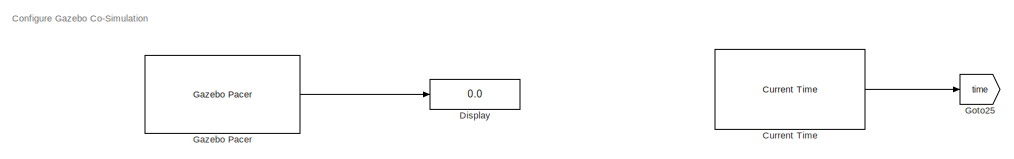
[diagram: root canvas - part 1/8, top center region]
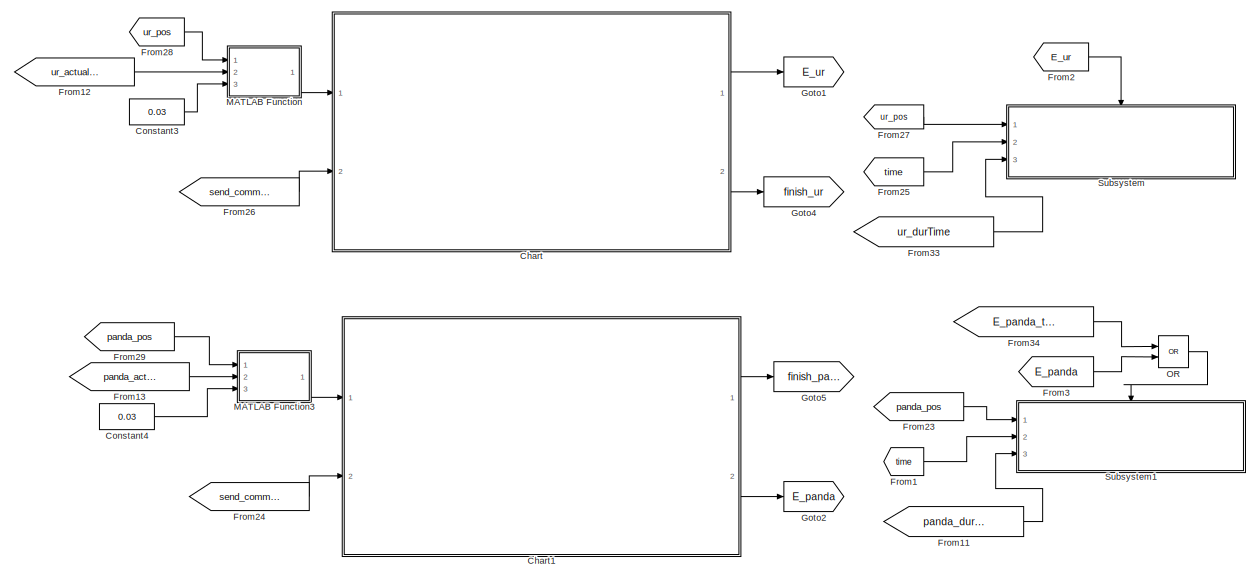
[diagram: root canvas - part 2/8, top right region]
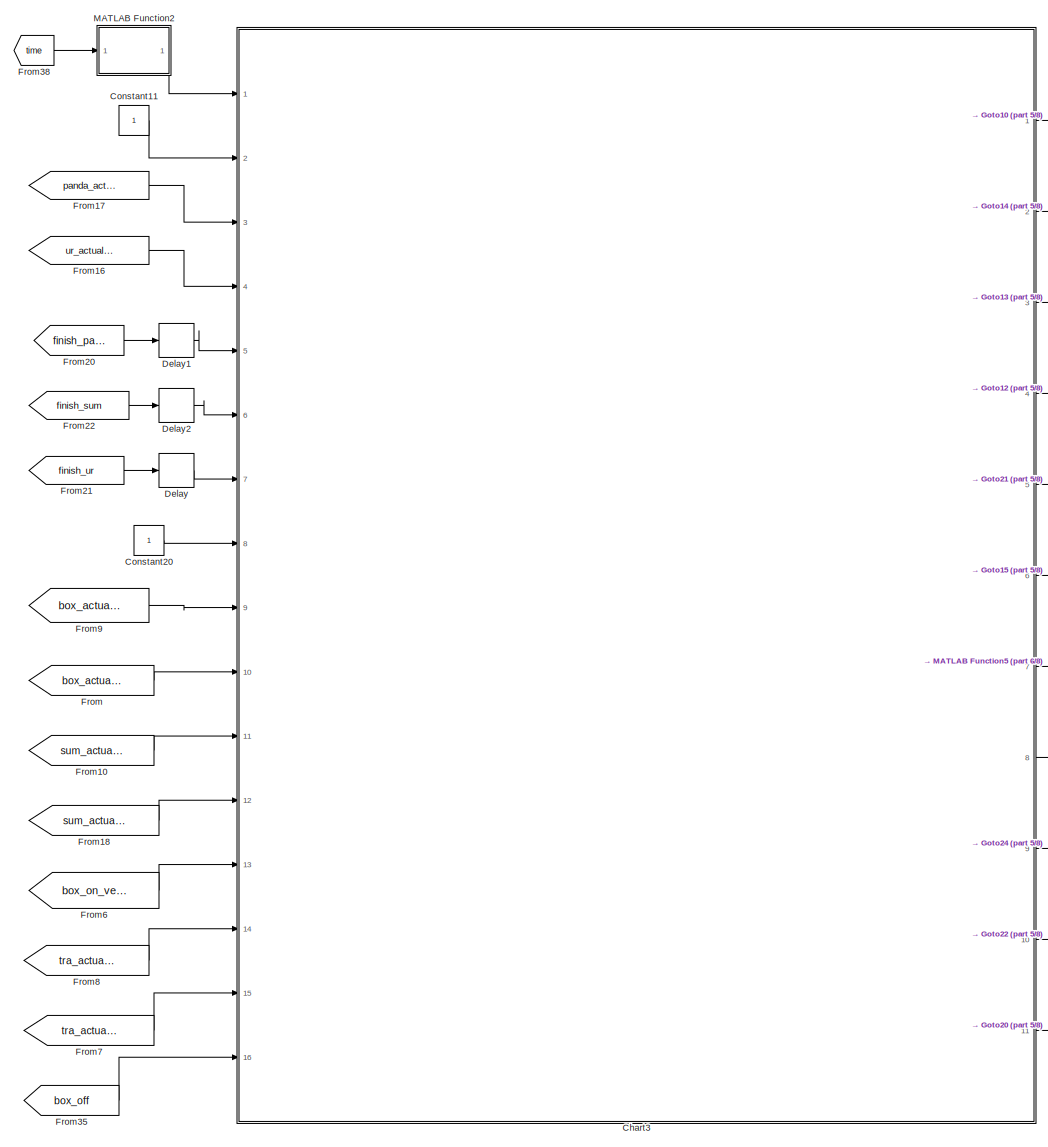
[diagram: root canvas - part 3/8, central region]
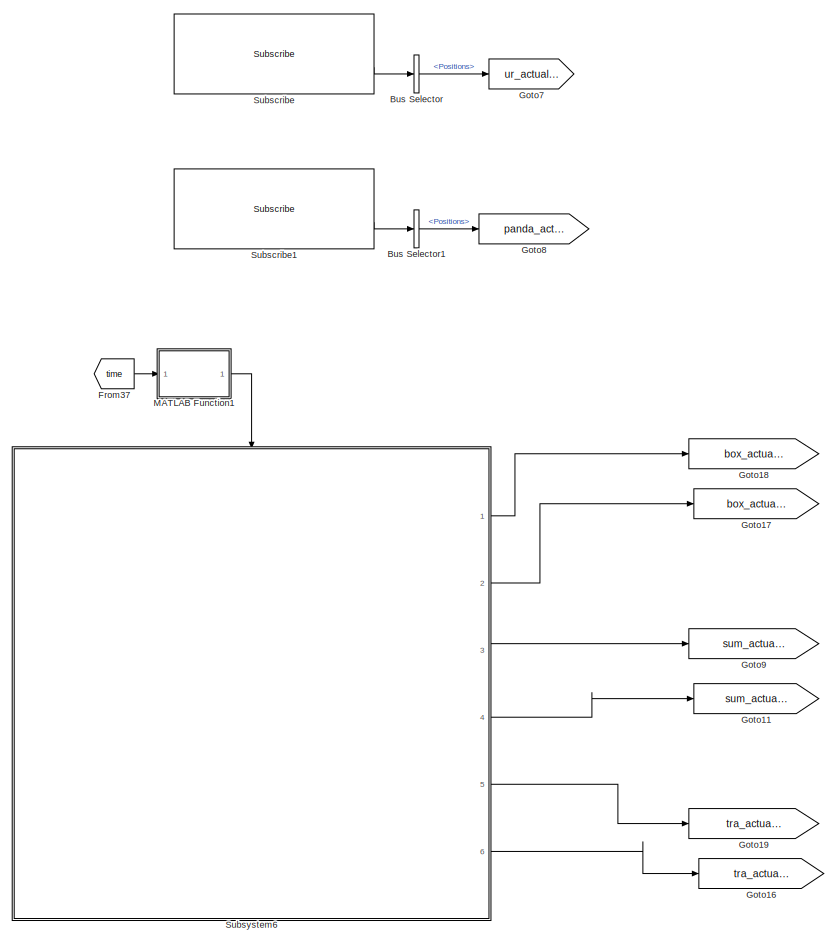
[diagram: root canvas - part 4/8, middle left region]
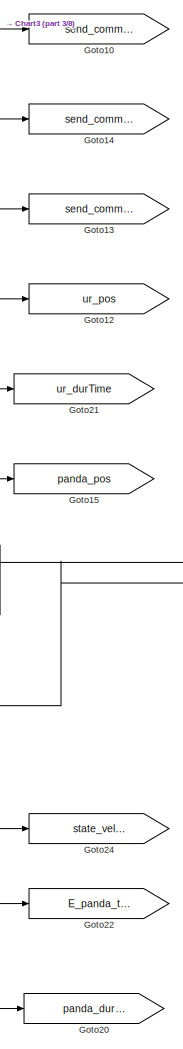
[diagram: root canvas - part 5/8, central region]
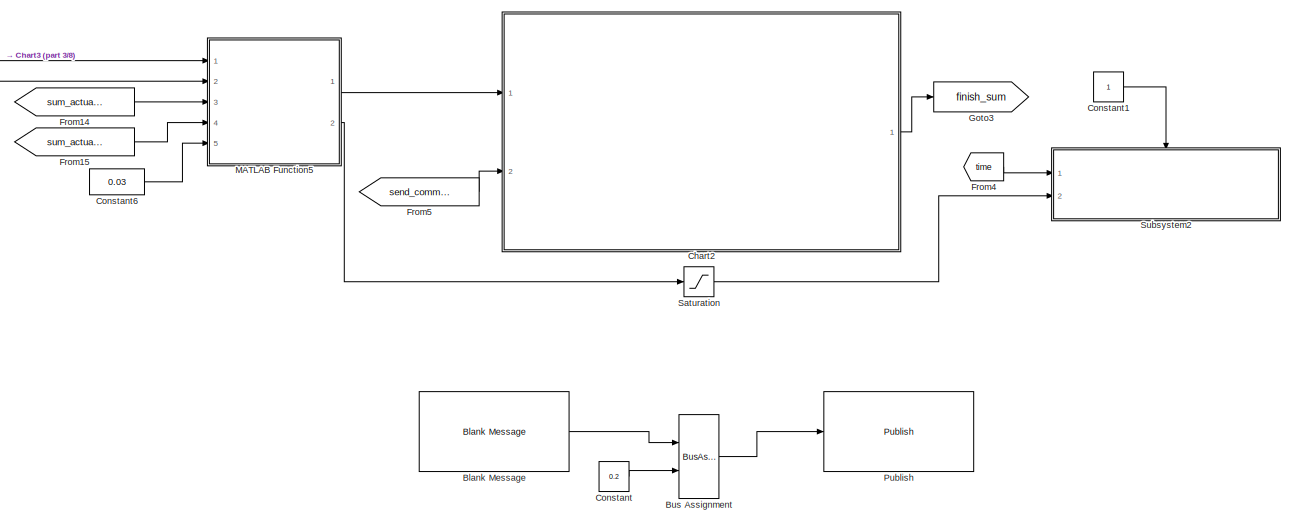
[diagram: root canvas - part 6/8, middle right region]
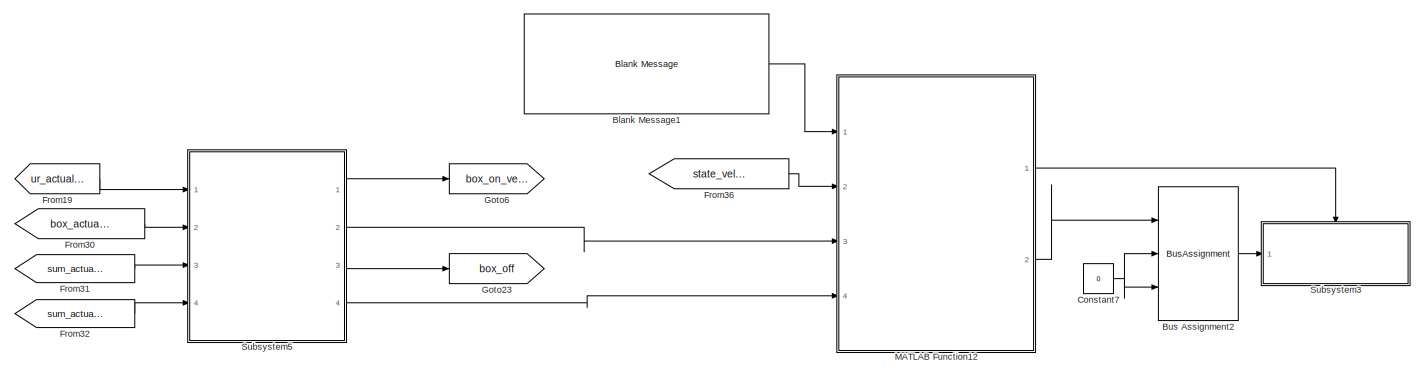
[diagram: root canvas - part 7/8, bottom right region]
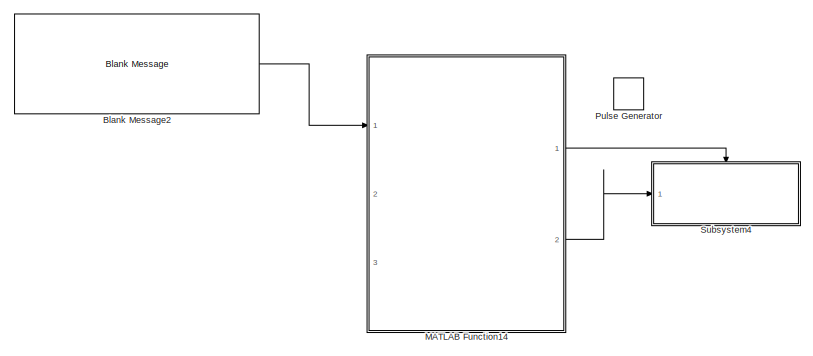
[diagram: root canvas - part 8/8, bottom left region]
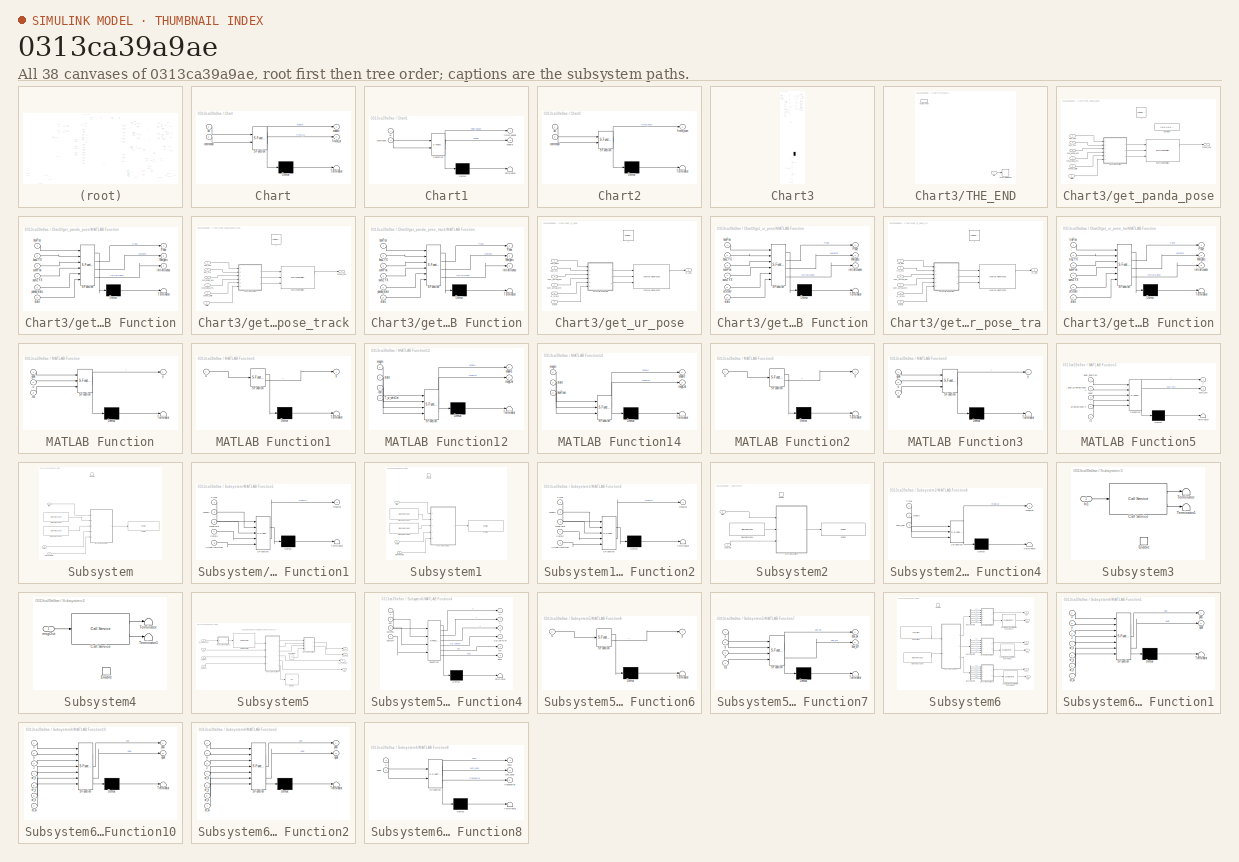
[diagram: thumbnail index - all 38 canvases of the model, root first then tree order]
MODEL slx_0313ca39a9ae
KIND model
CONFIG AbsTol = auto
CONFIG EnableMultiTasking = off
CONFIG FixedStep = 0.05
CONFIG MaxStep = auto
CONFIG MinStep = auto
CONFIG PreLoadFcn = rosinit();
CONFIG RelTol = 1e-3
CONFIG SampleTimeConstraint = Unconstrained
CONFIG SolverName = FixedStepAuto
CONFIG StartTime = 0.0
CONFIG StopTime = inf
WORKSPACE source: mxarray member
WORKSPACE SL_ROS_VariableLengthArrays_MaxSizes: object (value not decoded)
WORKSPACE pitch = -10
WORKSPACE restart = 0
BLOCK [Reference] Blank Message  REF=robotlib/Blank Message
  Ports = [0, 1]
  SourceBlock = robotlib/Blank Message
  SourceType = ROS Blank Message
BLOCK [Reference] Blank Message1  REF=robotlib/Blank Message
  Ports = [0, 1]
  SourceBlock = robotlib/Blank Message
  SourceType = ROS Blank Message
BLOCK [Reference] Blank Message2  REF=robotlib/Blank Message
  Commented = on
  Ports = [0, 1]
  SourceBlock = robotlib/Blank Message
  SourceType = ROS Blank Message
BLOCK [BusAssignment] Bus Assignment
  AssignedSignals = Data
  Ports = [2, 1]
BLOCK [BusAssignment] Bus Assignment2
  AssignedSignals = StartTime.Sec,StartTime.Nsec
  Ports = [3, 1]
BLOCK [BusSelector] Bus Selector
  OutputSignals = Actual.Positions
  Ports = [1, 1]
BLOCK [BusSelector] Bus Selector1
  OutputSignals = Actual.Positions
  Ports = [1, 1]
BLOCK [SubSystem] Chart
  ErrorFcn = Stateflow.Translate.translate
  PermitHierarchicalResolution = ExplicitOnly
  Ports = [2, 2]
  SFBlockType = Chart
  TreatAsAtomicUnit = on
BLOCK [Demux] Chart/ Demux 
  Outputs = 1
  Ports = [1, 1]
BLOCK [S-Function] Chart/ SFunction 
  EnableBusSupport = on
  FunctionName = sf_sfun
  PortCounts = [2 3]
  Ports = [2, 3]
  SFcnIsStateOwnerBlock = off
  SFunctionDeploymentMode = off
  Tag = Stateflow S-Function 2
BLOCK [Terminator] Chart/ Terminator 
BLOCK [Inport] Chart/command
  Port = 2
BLOCK [Outport] Chart/enable
BLOCK [Outport] Chart/finish_ur
  Port = 2
BLOCK [Inport] Chart/ok
BLOCK [SubSystem] Chart1
  ErrorFcn = Stateflow.Translate.translate
  PermitHierarchicalResolution = ExplicitOnly
  Ports = [2, 2]
  SFBlockType = Chart
  TreatAsAtomicUnit = on
BLOCK [Demux] Chart1/ Demux 
  Outputs = 1
  Ports = [1, 1]
BLOCK [S-Function] Chart1/ SFunction 
  EnableBusSupport = on
  FunctionName = sf_sfun
  PortCounts = [2 3]
  Ports = [2, 3]
  SFcnIsStateOwnerBlock = off
  SFunctionDeploymentMode = off
  Tag = Stateflow S-Function 5
BLOCK [Terminator] Chart1/ Terminator 
BLOCK [Inport] Chart1/command
  Port = 2
BLOCK [Outport] Chart1/enable
  Port = 2
BLOCK [Outport] Chart1/finish_panda
BLOCK [Inport] Chart1/ok
BLOCK [SubSystem] Chart2
  ErrorFcn = Stateflow.Translate.translate
  PermitHierarchicalResolution = ExplicitOnly
  Ports = [2, 1]
  SFBlockType = Chart
  TreatAsAtomicUnit = on
BLOCK [Demux] Chart2/ Demux 
  Outputs = 1
  Ports = [1, 1]
BLOCK [S-Function] Chart2/ SFunction 
  EnableBusSupport = on
  FunctionName = sf_sfun
  PortCounts = [2 2]
  Ports = [2, 2]
  SFcnIsStateOwnerBlock = off
  SFunctionDeploymentMode = off
  Tag = Stateflow S-Function 7
BLOCK [Terminator] Chart2/ Terminator 
BLOCK [Inport] Chart2/command
  Port = 2
BLOCK [Outport] Chart2/finish_sum
BLOCK [Inport] Chart2/ok
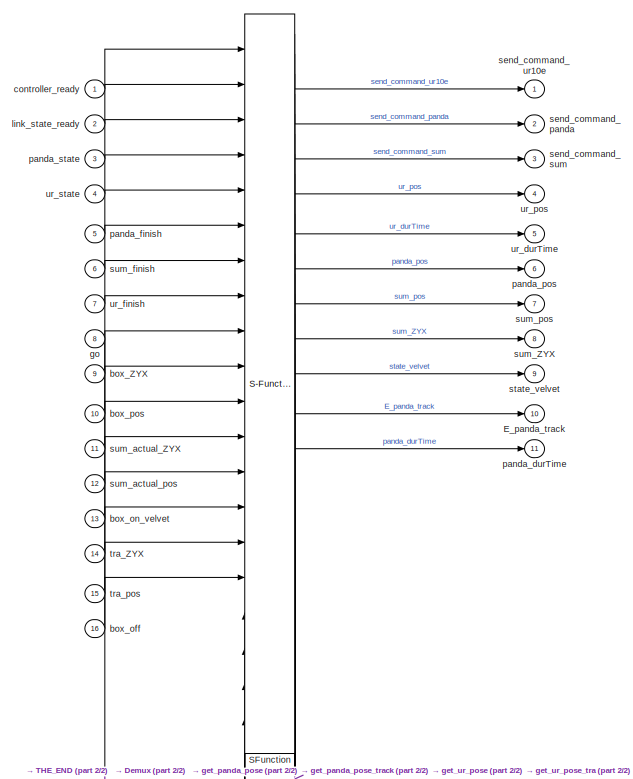
[diagram: Chart3 - part 1/2, full width, top band]
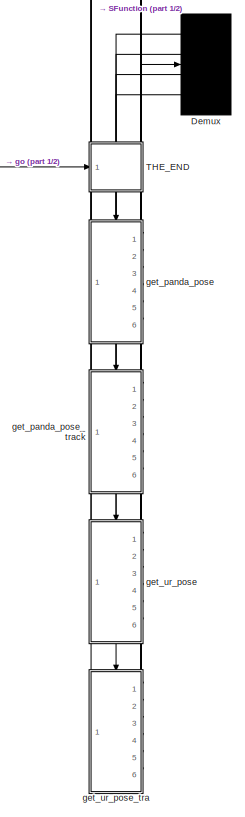
[diagram: Chart3 - part 2/2, bottom center region]
BLOCK [SubSystem] Chart3
  ErrorFcn = Stateflow.Translate.translate
  PermitHierarchicalResolution = ExplicitOnly
  Ports = [16, 11]
  SFBlockType = Chart
  TreatAsAtomicUnit = on
BLOCK [Demux] Chart3/ Demux 
  Ports = [1, 4]
BLOCK [S-Function] Chart3/ SFunction 
  EnableBusSupport = on
  FunctionName = sf_sfun
  PortCounts = [20 36]
  Ports = [20, 36]
  SFcnIsStateOwnerBlock = off
  SFunctionDeploymentMode = off
  Tag = Stateflow S-Function 14
BLOCK [Outport] Chart3/E_panda_track
  Port = 10
BLOCK [SubSystem] Chart3/THE_END
  Ports = [1, 0, 0, 0, 0, 0, 0, 1]
  PreDeleteFcn = Stateflow.SLINSF.SimulinkMan.removePreDeleteFcn
  UndoDeleteFcn = Stateflow.SLINSF.SimulinkMan.restorePreDeleteFcn
BLOCK [ActionPort] Chart3/THE_END/Action Port
  CopyFcn = Stateflow.SLINSF.SimulinkMan.removeBlockPreDeleteFcn
  PreDeleteFcn = Stateflow.SLINSF.SimulinkMan.unsafePredeleteFcn
BLOCK [Stop] Chart3/THE_END/Stop Simulation
BLOCK [Inport] Chart3/THE_END/go
BLOCK [Inport] Chart3/box_ZYX
  Port = 9
BLOCK [Inport] Chart3/box_off
  Port = 16
BLOCK [Inport] Chart3/box_on_velvet
  Port = 13
BLOCK [Inport] Chart3/box_pos
  Port = 10
BLOCK [Inport] Chart3/controller_ready
BLOCK [SubSystem] Chart3/get_panda_pose
  Ports = [6, 1, 0, 1]
  PreDeleteFcn = Stateflow.SLINSF.SimulinkMan.removePreDeleteFcn
  UndoDeleteFcn = Stateflow.SLINSF.SimulinkMan.restorePreDeleteFcn
BLOCK [Constant] Chart3/get_panda_pose/Constant
  Value = [0,0,1,0,0,0,0]'
BLOCK [Reference] Chart3/get_panda_pose/Inverse Kinematics  REF=robotmaniplib/Inverse Kinematics
  Ports = [3, 2]
  SourceBlock = robotmaniplib/Inverse Kinematics
  SourceType = Inverse Kinematics
BLOCK [SubSystem] Chart3/get_panda_pose/MATLAB Function
  ErrorFcn = Stateflow.Translate.translate
  PermitHierarchicalResolution = ExplicitOnly
  Ports = [6, 3]
  SFBlockType = MATLAB Function
  TreatAsAtomicUnit = on
BLOCK [Demux] Chart3/get_panda_pose/MATLAB Function/ Demux 
  Outputs = 1
  Ports = [1, 1]
BLOCK [S-Function] Chart3/get_panda_pose/MATLAB Function/ SFunction 
  EnableBusSupport = off
  FunctionName = sf_sfun
  PortCounts = [6 4]
  Ports = [6, 4]
  SFcnIsStateOwnerBlock = off
  SFunctionDeploymentMode = off
  Tag = Stateflow S-Function 13
BLOCK [Terminator] Chart3/get_panda_pose/MATLAB Function/ Terminator 
BLOCK [Outport] Chart3/get_panda_pose/MATLAB Function/Pose
BLOCK [Outport] Chart3/get_panda_pose/MATLAB Function/Weights
  Port = 2
BLOCK [Inport] Chart3/get_panda_pose/MATLAB Function/boxPos
BLOCK [Inport] Chart3/get_panda_pose/MATLAB Function/boxZYX
  Port = 2
BLOCK [Outport] Chart3/get_panda_pose/MATLAB Function/initialGuess
  Port = 3
BLOCK [Inport] Chart3/get_panda_pose/MATLAB Function/panda_state
  Port = 5
BLOCK [Inport] Chart3/get_panda_pose/MATLAB Function/state
  Port = 6
BLOCK [Inport] Chart3/get_panda_pose/MATLAB Function/sumPos
  Port = 3
BLOCK [Inport] Chart3/get_panda_pose/MATLAB Function/sumZYX
  Port = 4
BLOCK [Inport] Chart3/get_panda_pose/box_ZYX
  OutDataTypeStr = double
  Port = 2
  PortDimensions = [3,1]
  SignalType = real
  VarSizeSig = No
BLOCK [Inport] Chart3/get_panda_pose/box_pos
  OutDataTypeStr = double
  PortDimensions = [3,1]
  SignalType = real
  VarSizeSig = No
BLOCK [TriggerPort] Chart3/get_panda_pose/f
  CopyFcn = Stateflow.SLINSF.SimulinkMan.removeBlockPreDeleteFcn
  Ports = []
  PreDeleteFcn = Stateflow.SLINSF.SimulinkMan.unsafePredeleteFcn
  StatesWhenEnabling = held
  TriggerType = function-call
  VariantControl = (inherit)
BLOCK [Outport] Chart3/get_panda_pose/panda_pos
BLOCK [Inport] Chart3/get_panda_pose/panda_state
  OutDataTypeStr = double
  Port = 5
  PortDimensions = [7,1]
  SignalType = real
  VarSizeSig = No
BLOCK [Inport] Chart3/get_panda_pose/state
  OutDataTypeStr = double
  Port = 6
  PortDimensions = 1
  SignalType = real
  VarSizeSig = No
BLOCK [Inport] Chart3/get_panda_pose/sum_actual_ZYX
  OutDataTypeStr = double
  Port = 4
  PortDimensions = [3,1]
  SignalType = real
  VarSizeSig = No
BLOCK [Inport] Chart3/get_panda_pose/sum_actual_pos
  OutDataTypeStr = double
  Port = 3
  PortDimensions = [3,1]
  SignalType = real
  VarSizeSig = No
BLOCK [SubSystem] Chart3/get_panda_pose_track
  Ports = [6, 1, 0, 1]
  PreDeleteFcn = Stateflow.SLINSF.SimulinkMan.removePreDeleteFcn
  UndoDeleteFcn = Stateflow.SLINSF.SimulinkMan.restorePreDeleteFcn
BLOCK [Reference] Chart3/get_panda_pose_track/Inverse Kinematics  REF=robotmaniplib/Inverse Kinematics
  Ports = [3, 2]
  SourceBlock = robotmaniplib/Inverse Kinematics
  SourceType = Inverse Kinematics
BLOCK [SubSystem] Chart3/get_panda_pose_track/MATLAB Function
  ErrorFcn = Stateflow.Translate.translate
  PermitHierarchicalResolution = ExplicitOnly
  Ports = [6, 3]
  SFBlockType = MATLAB Function
  TreatAsAtomicUnit = on
BLOCK [Demux] Chart3/get_panda_pose_track/MATLAB Function/ Demux 
  Outputs = 1
  Ports = [1, 1]
BLOCK [S-Function] Chart3/get_panda_pose_track/MATLAB Function/ SFunction 
  EnableBusSupport = off
  FunctionName = sf_sfun
  PortCounts = [6 4]
  Ports = [6, 4]
  SFcnIsStateOwnerBlock = off
  SFunctionDeploymentMode = off
  Tag = Stateflow S-Function 21
BLOCK [Terminator] Chart3/get_panda_pose_track/MATLAB Function/ Terminator 
BLOCK [Outport] Chart3/get_panda_pose_track/MATLAB Function/Pose
BLOCK [Outport] Chart3/get_panda_pose_track/MATLAB Function/Weights
  Port = 2
BLOCK [Inport] Chart3/get_panda_pose_track/MATLAB Function/boxPos
BLOCK [Inport] Chart3/get_panda_pose_track/MATLAB Function/boxZYX
  Port = 2
BLOCK [Outport] Chart3/get_panda_pose_track/MATLAB Function/initialGuess
  Port = 3
BLOCK [Inport] Chart3/get_panda_pose_track/MATLAB Function/panda_state
  Port = 5
BLOCK [Inport] Chart3/get_panda_pose_track/MATLAB Function/state
  Port = 6
BLOCK [Inport] Chart3/get_panda_pose_track/MATLAB Function/sumPos
  Port = 3
BLOCK [Inport] Chart3/get_panda_pose_track/MATLAB Function/sumZYX
  Port = 4
BLOCK [Inport] Chart3/get_panda_pose_track/box_ZYX
  OutDataTypeStr = double
  Port = 2
  PortDimensions = [3,1]
  SignalType = real
  VarSizeSig = No
BLOCK [Inport] Chart3/get_panda_pose_track/box_pos
  OutDataTypeStr = double
  PortDimensions = [3,1]
  SignalType = real
  VarSizeSig = No
BLOCK [TriggerPort] Chart3/get_panda_pose_track/f
  CopyFcn = Stateflow.SLINSF.SimulinkMan.removeBlockPreDeleteFcn
  Ports = []
  PreDeleteFcn = Stateflow.SLINSF.SimulinkMan.unsafePredeleteFcn
  StatesWhenEnabling = held
  TriggerType = function-call
  VariantControl = (inherit)
BLOCK [Outport] Chart3/get_panda_pose_track/panda_pos
BLOCK [Inport] Chart3/get_panda_pose_track/panda_state
  OutDataTypeStr = double
  Port = 5
  PortDimensions = [7,1]
  SignalType = real
  VarSizeSig = No
BLOCK [Inport] Chart3/get_panda_pose_track/state
  OutDataTypeStr = double
  Port = 6
  PortDimensions = 1
  SignalType = real
  VarSizeSig = No
BLOCK [Inport] Chart3/get_panda_pose_track/sum_actual_ZYX
  OutDataTypeStr = double
  Port = 4
  PortDimensions = [3,1]
  SignalType = real
  VarSizeSig = No
BLOCK [Inport] Chart3/get_panda_pose_track/sum_actual_pos
  OutDataTypeStr = double
  Port = 3
  PortDimensions = [3,1]
  SignalType = real
  VarSizeSig = No
BLOCK [SubSystem] Chart3/get_ur_pose
  Ports = [6, 1, 0, 1]
  PreDeleteFcn = Stateflow.SLINSF.SimulinkMan.removePreDeleteFcn
  UndoDeleteFcn = Stateflow.SLINSF.SimulinkMan.restorePreDeleteFcn
BLOCK [Reference] Chart3/get_ur_pose/Inverse Kinematics  REF=robotmaniplib/Inverse Kinematics
  Ports = [3, 2]
  SourceBlock = robotmaniplib/Inverse Kinematics
  SourceType = Inverse Kinematics
BLOCK [SubSystem] Chart3/get_ur_pose/MATLAB Function
  ErrorFcn = Stateflow.Translate.translate
  PermitHierarchicalResolution = ExplicitOnly
  Ports = [6, 3]
  SFBlockType = MATLAB Function
  TreatAsAtomicUnit = on
BLOCK [Demux] Chart3/get_ur_pose/MATLAB Function/ Demux 
  Outputs = 1
  Ports = [1, 1]
BLOCK [S-Function] Chart3/get_ur_pose/MATLAB Function/ SFunction 
  EnableBusSupport = off
  FunctionName = sf_sfun
  PortCounts = [6 4]
  Ports = [6, 4]
  SFcnIsStateOwnerBlock = off
  SFunctionDeploymentMode = off
  Tag = Stateflow S-Function 10
BLOCK [Terminator] Chart3/get_ur_pose/MATLAB Function/ Terminator 
BLOCK [Outport] Chart3/get_ur_pose/MATLAB Function/Pose
BLOCK [Outport] Chart3/get_ur_pose/MATLAB Function/Weights
  Port = 2
BLOCK [Inport] Chart3/get_ur_pose/MATLAB Function/boxPos
BLOCK [Inport] Chart3/get_ur_pose/MATLAB Function/boxZYX
  Port = 2
BLOCK [Outport] Chart3/get_ur_pose/MATLAB Function/initialGuess
  Port = 3
BLOCK [Inport] Chart3/get_ur_pose/MATLAB Function/state
  Port = 6
BLOCK [Inport] Chart3/get_ur_pose/MATLAB Function/sumPos
  Port = 3
BLOCK [Inport] Chart3/get_ur_pose/MATLAB Function/sumZYX
  Port = 4
BLOCK [Inport] Chart3/get_ur_pose/MATLAB Function/urState
  Port = 5
BLOCK [Inport] Chart3/get_ur_pose/box_ZYX
  OutDataTypeStr = double
  Port = 2
  PortDimensions = [3,1]
  SignalType = real
  VarSizeSig = No
BLOCK [Inport] Chart3/get_ur_pose/box_pose
  OutDataTypeStr = double
  PortDimensions = [3,1]
  SignalType = real
  VarSizeSig = No
BLOCK [TriggerPort] Chart3/get_ur_pose/f
  CopyFcn = Stateflow.SLINSF.SimulinkMan.removeBlockPreDeleteFcn
  Ports = []
  PreDeleteFcn = Stateflow.SLINSF.SimulinkMan.unsafePredeleteFcn
  StatesWhenEnabling = held
  TriggerType = function-call
  VariantControl = (inherit)
BLOCK [Inport] Chart3/get_ur_pose/state
  OutDataTypeStr = double
  Port = 6
  PortDimensions = 1
  SignalType = real
  VarSizeSig = No
BLOCK [Inport] Chart3/get_ur_pose/sum_actual_ZYX
  OutDataTypeStr = double
  Port = 4
  PortDimensions = [3,1]
  SignalType = real
  VarSizeSig = No
BLOCK [Inport] Chart3/get_ur_pose/sum_actual_pos
  OutDataTypeStr = double
  Port = 3
  PortDimensions = [3,1]
  SignalType = real
  VarSizeSig = No
BLOCK [Outport] Chart3/get_ur_pose/ur_pos
BLOCK [Inport] Chart3/get_ur_pose/ur_state
  OutDataTypeStr = double
  Port = 5
  PortDimensions = [7,1]
  SignalType = real
  VarSizeSig = No
BLOCK [SubSystem] Chart3/get_ur_pose_tra
  Ports = [6, 1, 0, 1]
  PreDeleteFcn = Stateflow.SLINSF.SimulinkMan.removePreDeleteFcn
  UndoDeleteFcn = Stateflow.SLINSF.SimulinkMan.restorePreDeleteFcn
BLOCK [Reference] Chart3/get_ur_pose_tra/Inverse Kinematics  REF=robotmaniplib/Inverse Kinematics
  Ports = [3, 2]
  SourceBlock = robotmaniplib/Inverse Kinematics
  SourceType = Inverse Kinematics
BLOCK [SubSystem] Chart3/get_ur_pose_tra/MATLAB Function
  ErrorFcn = Stateflow.Translate.translate
  PermitHierarchicalResolution = ExplicitOnly
  Ports = [6, 3]
  SFBlockType = MATLAB Function
  TreatAsAtomicUnit = on
BLOCK [Demux] Chart3/get_ur_pose_tra/MATLAB Function/ Demux 
  Outputs = 1
  Ports = [1, 1]
BLOCK [S-Function] Chart3/get_ur_pose_tra/MATLAB Function/ SFunction 
  EnableBusSupport = off
  FunctionName = sf_sfun
  PortCounts = [6 4]
  Ports = [6, 4]
  SFcnIsStateOwnerBlock = off
  SFunctionDeploymentMode = off
  Tag = Stateflow S-Function 17
BLOCK [Terminator] Chart3/get_ur_pose_tra/MATLAB Function/ Terminator 
BLOCK [Outport] Chart3/get_ur_pose_tra/MATLAB Function/Pose
BLOCK [Outport] Chart3/get_ur_pose_tra/MATLAB Function/Weights
  Port = 2
BLOCK [Outport] Chart3/get_ur_pose_tra/MATLAB Function/initialGuess
  Port = 3
BLOCK [Inport] Chart3/get_ur_pose_tra/MATLAB Function/state
  Port = 6
BLOCK [Inport] Chart3/get_ur_pose_tra/MATLAB Function/sumPos
  Port = 3
BLOCK [Inport] Chart3/get_ur_pose_tra/MATLAB Function/sumZYX
  Port = 4
BLOCK [Inport] Chart3/get_ur_pose_tra/MATLAB Function/traPos
BLOCK [Inport] Chart3/get_ur_pose_tra/MATLAB Function/traZYX
  Port = 2
BLOCK [Inport] Chart3/get_ur_pose_tra/MATLAB Function/urState
  Port = 5
BLOCK [TriggerPort] Chart3/get_ur_pose_tra/f
  CopyFcn = Stateflow.SLINSF.SimulinkMan.removeBlockPreDeleteFcn
  Ports = []
  PreDeleteFcn = Stateflow.SLINSF.SimulinkMan.unsafePredeleteFcn
  StatesWhenEnabling = held
  TriggerType = function-call
  VariantControl = (inherit)
BLOCK [Inport] Chart3/get_ur_pose_tra/state
  OutDataTypeStr = double
  Port = 6
  PortDimensions = 1
  SignalType = real
  VarSizeSig = No
BLOCK [Inport] Chart3/get_ur_pose_tra/sum_actual_ZYX
  OutDataTypeStr = double
  Port = 4
  PortDimensions = [3,1]
  SignalType = real
  VarSizeSig = No
BLOCK [Inport] Chart3/get_ur_pose_tra/sum_actual_pos
  OutDataTypeStr = double
  Port = 3
  PortDimensions = [3,1]
  SignalType = real
  VarSizeSig = No
BLOCK [Inport] Chart3/get_ur_pose_tra/tra_ZYX
  OutDataTypeStr = double
  Port = 2
  PortDimensions = [3,1]
  SignalType = real
  VarSizeSig = No
BLOCK [Inport] Chart3/get_ur_pose_tra/tra_pos
  OutDataTypeStr = double
  PortDimensions = [3,1]
  SignalType = real
  VarSizeSig = No
BLOCK [Outport] Chart3/get_ur_pose_tra/ur_pos
BLOCK [Inport] Chart3/get_ur_pose_tra/ur_state
  OutDataTypeStr = double
  Port = 5
  PortDimensions = [7,1]
  SignalType = real
  VarSizeSig = No
BLOCK [Inport] Chart3/go
  Port = 8
BLOCK [Inport] Chart3/link_state_ready
  Port = 2
BLOCK [Outport] Chart3/panda_durTime
  Port = 11
BLOCK [Inport] Chart3/panda_finish
  Port = 5
BLOCK [Outport] Chart3/panda_pos
  Port = 6
BLOCK [Inport] Chart3/panda_state
  Port = 3
BLOCK [Outport] Chart3/send_command_panda
  Port = 2
BLOCK [Outport] Chart3/send_command_sum
  Port = 3
BLOCK [Outport] Chart3/send_command_ur10e
BLOCK [Outport] Chart3/state_velvet
  Port = 9
BLOCK [Outport] Chart3/sum_ZYX
  Port = 8
BLOCK [Inport] Chart3/sum_actual_ZYX
  Port = 11
BLOCK [Inport] Chart3/sum_actual_pos
  Port = 12
BLOCK [Inport] Chart3/sum_finish
  Port = 6
BLOCK [Outport] Chart3/sum_pos
  Port = 7
BLOCK [Inport] Chart3/tra_ZYX
  Port = 14
BLOCK [Inport] Chart3/tra_pos
  Port = 15
BLOCK [Outport] Chart3/ur_durTime
  Port = 5
BLOCK [Inport] Chart3/ur_finish
  Port = 7
BLOCK [Outport] Chart3/ur_pos
  Port = 4
BLOCK [Inport] Chart3/ur_state
  Port = 4
BLOCK [Constant] Constant
  Value = 0.2
BLOCK [Constant] Constant1
BLOCK [Constant] Constant11
BLOCK [Constant] Constant20
BLOCK [Constant] Constant3
  Value = 0.03
BLOCK [Constant] Constant4
  Value = 0.03
BLOCK [Constant] Constant6
  Value = 0.03
BLOCK [Constant] Constant7
  Value = 0
BLOCK [Reference] Current Time  REF=robotlib/Current Time
  Ports = [0, 1]
  SourceBlock = robotlib/Current Time
  SourceType = ros.slros.internal.block.CurrentTime
BLOCK [Delay] Delay
  DelayLength = 1
  InitialCondition = 0
  InputPortMap = u0
  Ports = [1, 1]
BLOCK [Delay] Delay1
  DelayLength = 1
  InitialCondition = 0
  InputPortMap = u0
  Ports = [1, 1]
BLOCK [Delay] Delay2
  DelayLength = 1
  InitialCondition = 0
  InputPortMap = u0
  Ports = [1, 1]
BLOCK [Display] Display
  Decimation = 1
  Ports = [1]
BLOCK [From] From
  GotoTag = box_actual_pos
BLOCK [From] From1
  GotoTag = time
  TagVisibility = global
BLOCK [From] From10
  GotoTag = sum_actual_ZYX
BLOCK [From] From11
  GotoTag = panda_durTime
  TagVisibility = global
BLOCK [From] From12
  GotoTag = ur_actual_pos
BLOCK [From] From13
  GotoTag = panda_actual_pos
BLOCK [From] From14
  GotoTag = sum_actual_pos
BLOCK [From] From15
  GotoTag = sum_actual_ZYX
BLOCK [From] From16
  GotoTag = ur_actual_pos
BLOCK [From] From17
  GotoTag = panda_actual_pos
BLOCK [From] From18
  GotoTag = sum_actual_pos
BLOCK [From] From19
  GotoTag = ur_actual_pos
BLOCK [From] From2
  GotoTag = E_ur
BLOCK [From] From20
  GotoTag = finish_panda
BLOCK [From] From21
  GotoTag = finish_ur
BLOCK [From] From22
  GotoTag = finish_sum
BLOCK [From] From23
  GotoTag = panda_pos
  TagVisibility = global
BLOCK [From] From24
  GotoTag = send_command_panda
  TagVisibility = global
BLOCK [From] From25
  GotoTag = time
  TagVisibility = global
BLOCK [From] From26
  GotoTag = send_command_ur10e
  TagVisibility = global
BLOCK [From] From27
  GotoTag = ur_pos
  TagVisibility = global
BLOCK [From] From28
  GotoTag = ur_pos
  TagVisibility = global
BLOCK [From] From29
  GotoTag = panda_pos
  TagVisibility = global
BLOCK [From] From3
  GotoTag = E_panda
BLOCK [From] From30
  GotoTag = box_actual_pos
BLOCK [From] From31
  GotoTag = sum_actual_pos
BLOCK [From] From32
  GotoTag = sum_actual_ZYX
BLOCK [From] From33
  GotoTag = ur_durTime
  TagVisibility = global
BLOCK [From] From34
  GotoTag = E_panda_track
  TagVisibility = global
BLOCK [From] From35
  GotoTag = box_off
BLOCK [From] From36
  GotoTag = state_velvet
  TagVisibility = global
BLOCK [From] From37
  GotoTag = time
  TagVisibility = global
BLOCK [From] From38
  GotoTag = time
  TagVisibility = global
BLOCK [From] From4
  GotoTag = time
  TagVisibility = global
BLOCK [From] From5
  GotoTag = send_command_sum
  TagVisibility = global
BLOCK [From] From6
  GotoTag = box_on_velvet
BLOCK [From] From7
  GotoTag = tra_actual_pos
BLOCK [From] From8
  GotoTag = tra_actual_ZYX
BLOCK [From] From9
  GotoTag = box_actual_ZYX
BLOCK [Reference] Gazebo Pacer  REF=robotgazebolib/Gazebo Pacer
  Ports = [0, 1]
  SourceBlock = robotgazebolib/Gazebo Pacer
  SourceType = Gazebo Pacer
BLOCK [Goto] Goto1
  GotoTag = E_ur
BLOCK [Goto] Goto10
  GotoTag = send_command_ur10e
  TagVisibility = global
BLOCK [Goto] Goto11
  GotoTag = sum_actual_ZYX
BLOCK [Goto] Goto12
  GotoTag = ur_pos
  TagVisibility = global
BLOCK [Goto] Goto13
  GotoTag = send_command_sum
  TagVisibility = global
BLOCK [Goto] Goto14
  GotoTag = send_command_panda
  TagVisibility = global
BLOCK [Goto] Goto15
  GotoTag = panda_pos
  TagVisibility = global
BLOCK [Goto] Goto16
  GotoTag = tra_actual_ZYX
BLOCK [Goto] Goto17
  GotoTag = box_actual_ZYX
BLOCK [Goto] Goto18
  GotoTag = box_actual_pos
BLOCK [Goto] Goto19
  GotoTag = tra_actual_pos
BLOCK [Goto] Goto2
  GotoTag = E_panda
BLOCK [Goto] Goto20
  GotoTag = panda_durTime
  TagVisibility = global
BLOCK [Goto] Goto21
  GotoTag = ur_durTime
  TagVisibility = global
BLOCK [Goto] Goto22
  GotoTag = E_panda_track
  TagVisibility = global
BLOCK [Goto] Goto23
  GotoTag = box_off
BLOCK [Goto] Goto24
  GotoTag = state_velvet
  TagVisibility = global
BLOCK [Goto] Goto25
  GotoTag = time
  TagVisibility = global
BLOCK [Goto] Goto3
  GotoTag = finish_sum
BLOCK [Goto] Goto4
  GotoTag = finish_ur
BLOCK [Goto] Goto5
  GotoTag = finish_panda
BLOCK [Goto] Goto6
  GotoTag = box_on_velvet
BLOCK [Goto] Goto7
  GotoTag = ur_actual_pos
BLOCK [Goto] Goto8
  GotoTag = panda_actual_pos
BLOCK [Goto] Goto9
  GotoTag = sum_actual_pos
BLOCK [SubSystem] MATLAB Function
  ErrorFcn = Stateflow.Translate.translate
  PermitHierarchicalResolution = ExplicitOnly
  Ports = [3, 1]
  SFBlockType = MATLAB Function
  TreatAsAtomicUnit = on
BLOCK [Demux] MATLAB Function/ Demux 
  Outputs = 1
  Ports = [1, 1]
BLOCK [S-Function] MATLAB Function/ SFunction 
  EnableBusSupport = on
  FunctionName = sf_sfun
  PortCounts = [3 2]
  Ports = [3, 2]
  SFcnIsStateOwnerBlock = off
  SFunctionDeploymentMode = off
  Tag = Stateflow S-Function 4
BLOCK [Terminator] MATLAB Function/ Terminator 
BLOCK [Inport] MATLAB Function/goal
BLOCK [Inport] MATLAB Function/tol
  Port = 3
BLOCK [Inport] MATLAB Function/u
  Port = 2
BLOCK [Outport] MATLAB Function/y
BLOCK [SubSystem] MATLAB Function1
  ErrorFcn = Stateflow.Translate.translate
  PermitHierarchicalResolution = ExplicitOnly
  Ports = [1, 1]
  SFBlockType = MATLAB Function
  TreatAsAtomicUnit = on
BLOCK [Demux] MATLAB Function1/ Demux 
  Outputs = 1
  Ports = [1, 1]
BLOCK [S-Function] MATLAB Function1/ SFunction 
  EnableBusSupport = on
  FunctionName = sf_sfun
  PortCounts = [1 2]
  Ports = [1, 2]
  SFcnIsStateOwnerBlock = off
  SFunctionDeploymentMode = off
  Tag = Stateflow S-Function 18
BLOCK [Terminator] MATLAB Function1/ Terminator 
BLOCK [Inport] MATLAB Function1/u
BLOCK [Outport] MATLAB Function1/y
BLOCK [SubSystem] MATLAB Function12
  ErrorFcn = Stateflow.Translate.translate
  PermitHierarchicalResolution = ExplicitOnly
  Ports = [4, 2]
  SFBlockType = MATLAB Function
  TreatAsAtomicUnit = on
BLOCK [Demux] MATLAB Function12/ Demux 
  Outputs = 1
  Ports = [1, 1]
BLOCK [S-Function] MATLAB Function12/ SFunction 
  EnableBusSupport = on
  FunctionName = sf_sfun
  PortCounts = [4 3]
  Ports = [4, 3]
  SFcnIsStateOwnerBlock = off
  SFunctionDeploymentMode = off
  Tag = Stateflow S-Function 22
BLOCK [Terminator] MATLAB Function12/ Terminator 
BLOCK [Inport] MATLAB Function12/T_ur_velvCnt
  Port = 4
BLOCK [Inport] MATLAB Function12/coll
  Port = 3
BLOCK [Outport] MATLAB Function12/enable
BLOCK [Inport] MATLAB Function12/msgIn
BLOCK [Outport] MATLAB Function12/msgOut
  Port = 2
BLOCK [Inport] MATLAB Function12/state
  Port = 2
BLOCK [SubSystem] MATLAB Function14
  Commented = on
  ErrorFcn = Stateflow.Translate.translate
  PermitHierarchicalResolution = ExplicitOnly
  Ports = [3, 2]
  SFBlockType = MATLAB Function
  TreatAsAtomicUnit = on
BLOCK [Demux] MATLAB Function14/ Demux 
  Outputs = 1
  Ports = [1, 1]
BLOCK [S-Function] MATLAB Function14/ SFunction 
  EnableBusSupport = on
  FunctionName = sf_sfun
  PortCounts = [3 3]
  Ports = [3, 3]
  SFcnIsStateOwnerBlock = off
  SFunctionDeploymentMode = off
  Tag = Stateflow S-Function 19
BLOCK [Terminator] MATLAB Function14/ Terminator 
BLOCK [Inport] MATLAB Function14/boxPose
  Port = 3
BLOCK [Outport] MATLAB Function14/enable
BLOCK [Inport] MATLAB Function14/msgIn
BLOCK [Outport] MATLAB Function14/msgOut
  Port = 2
BLOCK [Inport] MATLAB Function14/state
  Port = 2
BLOCK [SubSystem] MATLAB Function2
  ErrorFcn = Stateflow.Translate.translate
  PermitHierarchicalResolution = ExplicitOnly
  Ports = [1, 1]
  SFBlockType = MATLAB Function
  TreatAsAtomicUnit = on
BLOCK [Demux] MATLAB Function2/ Demux 
  Outputs = 1
  Ports = [1, 1]
BLOCK [S-Function] MATLAB Function2/ SFunction 
  EnableBusSupport = on
  FunctionName = sf_sfun
  PortCounts = [1 2]
  Ports = [1, 2]
  SFcnIsStateOwnerBlock = off
  SFunctionDeploymentMode = off
  Tag = Stateflow S-Function 20
BLOCK [Terminator] MATLAB Function2/ Terminator 
BLOCK [Inport] MATLAB Function2/u
BLOCK [Outport] MATLAB Function2/y
BLOCK [SubSystem] MATLAB Function3
  ErrorFcn = Stateflow.Translate.translate
  PermitHierarchicalResolution = ExplicitOnly
  Ports = [3, 1]
  SFBlockType = MATLAB Function
  TreatAsAtomicUnit = on
BLOCK [Demux] MATLAB Function3/ Demux 
  Outputs = 1
  Ports = [1, 1]
BLOCK [S-Function] MATLAB Function3/ SFunction 
  EnableBusSupport = on
  FunctionName = sf_sfun
  PortCounts = [3 2]
  Ports = [3, 2]
  SFcnIsStateOwnerBlock = off
  SFunctionDeploymentMode = off
  Tag = Stateflow S-Function 6
BLOCK [Terminator] MATLAB Function3/ Terminator 
BLOCK [Inport] MATLAB Function3/goal
BLOCK [Inport] MATLAB Function3/tol
  Port = 3
BLOCK [Inport] MATLAB Function3/u
  Port = 2
BLOCK [Outport] MATLAB Function3/y
BLOCK [SubSystem] MATLAB Function5
  ErrorFcn = Stateflow.Translate.translate
  PermitHierarchicalResolution = ExplicitOnly
  Ports = [5, 2]
  SFBlockType = MATLAB Function
  TreatAsAtomicUnit = on
BLOCK [Demux] MATLAB Function5/ Demux 
  Outputs = 1
  Ports = [1, 1]
BLOCK [S-Function] MATLAB Function5/ SFunction 
  EnableBusSupport = on
  FunctionName = sf_sfun
  PortCounts = [5 3]
  Ports = [5, 3]
  SFcnIsStateOwnerBlock = off
  SFunctionDeploymentMode = off
  Tag = Stateflow S-Function 9
BLOCK [Terminator] MATLAB Function5/ Terminator 
BLOCK [Inport] MATLAB Function5/goal_orientationZYX
  Port = 2
BLOCK [Inport] MATLAB Function5/goal_position
BLOCK [Inport] MATLAB Function5/orientationZYX
  Port = 4
BLOCK [Inport] MATLAB Function5/pose
  Port = 3
BLOCK [Outport] MATLAB Function5/sum_cntr
  Port = 2
BLOCK [Inport] MATLAB Function5/tol
  Port = 5
BLOCK [Outport] MATLAB Function5/y
BLOCK [Logic] OR
  AllPortsSameDT = off
  IconShape = distinctive
  Operator = OR
  OutDataTypeStr = boolean
  Ports = [2, 1]
BLOCK [Reference] Publish  REF=robotlib/Publish
  Ports = [1]
  SourceBlock = robotlib/Publish
  SourceType = ROS Publish
BLOCK [DiscretePulseGenerator] Pulse Generator
  Commented = on
  Period = 10
  Ports = [0, 1]
  PulseType = Time based
  PulseWidth = 0.1
BLOCK [Saturate] Saturation
  LowerLimit = -0.2
  UpperLimit = 0.2
BLOCK [Reference] Subscribe  REF=robotlib/Subscribe
  Ports = [0, 2]
  SourceBlock = robotlib/Subscribe
  SourceType = ROS Subscribe
BLOCK [Reference] Subscribe1  REF=robotlib/Subscribe
  Ports = [0, 2]
  SourceBlock = robotlib/Subscribe
  SourceType = ROS Subscribe
BLOCK [SubSystem] Subsystem
  Ports = [3, 0, 1]
BLOCK [Reference] Subsystem/Blank Message  REF=robotlib/Blank Message
  Ports = [0, 1]
  SourceBlock = robotlib/Blank Message
  SourceType = ROS Blank Message
BLOCK [Reference] Subsystem/Blank Message1  REF=robotlib/Blank Message
  Ports = [0, 1]
  SourceBlock = robotlib/Blank Message
  SourceType = ROS Blank Message
BLOCK [EnablePort] Subsystem/Enable
  Ports = []
BLOCK [SubSystem] Subsystem/MATLAB Function1
  ErrorFcn = Stateflow.Translate.translate
  PermitHierarchicalResolution = ExplicitOnly
  Ports = [5, 1]
  SFBlockType = MATLAB Function
  TreatAsAtomicUnit = on
BLOCK [Demux] Subsystem/MATLAB Function1/ Demux 
  Outputs = 1
  Ports = [1, 1]
BLOCK [S-Function] Subsystem/MATLAB Function1/ SFunction 
  EnableBusSupport = on
  FunctionName = sf_sfun
  PortCounts = [5 2]
  Ports = [5, 2]
  SFcnIsStateOwnerBlock = off
  SFunctionDeploymentMode = off
  Tag = Stateflow S-Function 23
BLOCK [Terminator] Subsystem/MATLAB Function1/ Terminator 
BLOCK [Inport] Subsystem/MATLAB Function1/Points
  Port = 4
BLOCK [Inport] Subsystem/MATLAB Function1/Time
BLOCK [Inport] Subsystem/MATLAB Function1/TimeFromStart
  Port = 5
BLOCK [Inport] Subsystem/MATLAB Function1/msgIn
  Port = 2
BLOCK [Outport] Subsystem/MATLAB Function1/msgOut
BLOCK [Inport] Subsystem/MATLAB Function1/msgPoint
  Port = 3
BLOCK [Inport] Subsystem/Point
BLOCK [Reference] Subsystem/Publish  REF=robotlib/Publish
  Ports = [1]
  SourceBlock = robotlib/Publish
  SourceType = ROS Publish
BLOCK [Inport] Subsystem/TimeFromStart
  Port = 3
BLOCK [Inport] Subsystem/time
  Port = 2
BLOCK [SubSystem] Subsystem1
  Ports = [3, 0, 1]
BLOCK [Reference] Subsystem1/Blank Message2  REF=robotlib/Blank Message
  Ports = [0, 1]
  SourceBlock = robotlib/Blank Message
  SourceType = ROS Blank Message
BLOCK [Reference] Subsystem1/Blank Message3  REF=robotlib/Blank Message
  Ports = [0, 1]
  SourceBlock = robotlib/Blank Message
  SourceType = ROS Blank Message
BLOCK [EnablePort] Subsystem1/Enable
  Ports = []
BLOCK [SubSystem] Subsystem1/MATLAB Function2
  ErrorFcn = Stateflow.Translate.translate
  PermitHierarchicalResolution = ExplicitOnly
  Ports = [5, 1]
  SFBlockType = MATLAB Function
  TreatAsAtomicUnit = on
BLOCK [Demux] Subsystem1/MATLAB Function2/ Demux 
  Outputs = 1
  Ports = [1, 1]
BLOCK [S-Function] Subsystem1/MATLAB Function2/ SFunction 
  EnableBusSupport = on
  FunctionName = sf_sfun
  PortCounts = [5 2]
  Ports = [5, 2]
  SFcnIsStateOwnerBlock = off
  SFunctionDeploymentMode = off
  Tag = Stateflow S-Function 1
BLOCK [Terminator] Subsystem1/MATLAB Function2/ Terminator 
BLOCK [Inport] Subsystem1/MATLAB Function2/Points
  Port = 4
BLOCK [Inport] Subsystem1/MATLAB Function2/Time
BLOCK [Inport] Subsystem1/MATLAB Function2/TimeFromStart
  Port = 5
BLOCK [Inport] Subsystem1/MATLAB Function2/msgIn
  Port = 2
BLOCK [Outport] Subsystem1/MATLAB Function2/msgOut
BLOCK [Inport] Subsystem1/MATLAB Function2/msgPoint
  Port = 3
BLOCK [Reference] Subsystem1/Publish  REF=robotlib/Publish
  Ports = [1]
  SourceBlock = robotlib/Publish
  SourceType = ROS Publish
BLOCK [Inport] Subsystem1/TimeFromStart
  Port = 3
BLOCK [Inport] Subsystem1/points
BLOCK [Inport] Subsystem1/time
  Port = 2
BLOCK [SubSystem] Subsystem2
  Ports = [2, 0, 1]
BLOCK [Reference] Subsystem2/Blank Message4  REF=robotlib/Blank Message
  Ports = [0, 1]
  SourceBlock = robotlib/Blank Message
  SourceType = ROS Blank Message
BLOCK [EnablePort] Subsystem2/Enable
  Ports = []
BLOCK [SubSystem] Subsystem2/MATLAB Function4
  ErrorFcn = Stateflow.Translate.translate
  PermitHierarchicalResolution = ExplicitOnly
  Ports = [3, 1]
  SFBlockType = MATLAB Function
  TreatAsAtomicUnit = on
BLOCK [Demux] Subsystem2/MATLAB Function4/ Demux 
  Outputs = 1
  Ports = [1, 1]
BLOCK [S-Function] Subsystem2/MATLAB Function4/ SFunction 
  EnableBusSupport = on
  FunctionName = sf_sfun
  PortCounts = [3 2]
  Ports = [3, 2]
  SFcnIsStateOwnerBlock = off
  SFunctionDeploymentMode = off
  Tag = Stateflow S-Function 3
BLOCK [Terminator] Subsystem2/MATLAB Function4/ Terminator 
BLOCK [Inport] Subsystem2/MATLAB Function4/Time
BLOCK [Inport] Subsystem2/MATLAB Function4/msgIn
  Port = 2
BLOCK [Outport] Subsystem2/MATLAB Function4/msgOut
BLOCK [Inport] Subsystem2/MATLAB Function4/sum_cntr
  Port = 3
BLOCK [Reference] Subsystem2/Publish  REF=robotlib/Publish
  Ports = [1]
  SourceBlock = robotlib/Publish
  SourceType = ROS Publish
BLOCK [Inport] Subsystem2/sum_cntr
  Port = 2
BLOCK [Inport] Subsystem2/time
BLOCK [SubSystem] Subsystem3
  Ports = [1, 0, 1]
BLOCK [Reference] Subsystem3/Call Service  REF=robotlib/Call Service
  Ports = [1, 2]
  SourceBlock = robotlib/Call Service
  SourceType = ROS Call Service
BLOCK [EnablePort] Subsystem3/Enable
  Ports = []
BLOCK [Inport] Subsystem3/In1
BLOCK [Terminator] Subsystem3/Terminator
BLOCK [Terminator] Subsystem3/Terminator1
BLOCK [SubSystem] Subsystem4
  Commented = on
  Ports = [1, 0, 1]
BLOCK [Reference] Subsystem4/Call Service  REF=robotlib/Call Service
  Ports = [1, 2]
  SourceBlock = robotlib/Call Service
  SourceType = ROS Call Service
BLOCK [EnablePort] Subsystem4/Enable
  Ports = []
BLOCK [Terminator] Subsystem4/Terminator
BLOCK [Terminator] Subsystem4/Terminator1
BLOCK [Inport] Subsystem4/msgOut
BLOCK [SubSystem] Subsystem5
  Ports = [4, 4]
BLOCK [Constant] Subsystem5/Constant2
  Value = 0.3
BLOCK [Display] Subsystem5/Display
  Decimation = 1
  Ports = [1]
BLOCK [Reference] Subsystem5/Get Transform  REF=robotmaniplib/Get Transform
  Ports = [1, 1]
  SourceBlock = robotmaniplib/Get Transform
  SourceType = Get Transform
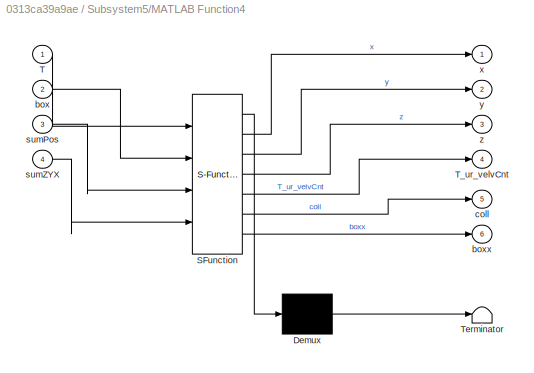
BLOCK [SubSystem] Subsystem5/MATLAB Function4
  ErrorFcn = Stateflow.Translate.translate
  PermitHierarchicalResolution = ExplicitOnly
  Ports = [4, 6]
  SFBlockType = MATLAB Function
  TreatAsAtomicUnit = on
BLOCK [Demux] Subsystem5/MATLAB Function4/ Demux 
  Outputs = 1
  Ports = [1, 1]
BLOCK [S-Function] Subsystem5/MATLAB Function4/ SFunction 
  EnableBusSupport = on
  FunctionName = sf_sfun
  PortCounts = [4 7]
  Ports = [4, 7]
  SFcnIsStateOwnerBlock = off
  SFunctionDeploymentMode = off
  Tag = Stateflow S-Function 25
BLOCK [Terminator] Subsystem5/MATLAB Function4/ Terminator 
BLOCK [Inport] Subsystem5/MATLAB Function4/T
BLOCK [Outport] Subsystem5/MATLAB Function4/T_ur_velvCnt
  Port = 4
BLOCK [Inport] Subsystem5/MATLAB Function4/box
  Port = 2
BLOCK [Outport] Subsystem5/MATLAB Function4/boxx
  Port = 6
BLOCK [Outport] Subsystem5/MATLAB Function4/coll
  Port = 5
BLOCK [Inport] Subsystem5/MATLAB Function4/sumPos
  Port = 3
BLOCK [Inport] Subsystem5/MATLAB Function4/sumZYX
  Port = 4
BLOCK [Outport] Subsystem5/MATLAB Function4/x
BLOCK [Outport] Subsystem5/MATLAB Function4/y
  Port = 2
BLOCK [Outport] Subsystem5/MATLAB Function4/z
  Port = 3
BLOCK [SubSystem] Subsystem5/MATLAB Function6
  ErrorFcn = Stateflow.Translate.translate
  PermitHierarchicalResolution = ExplicitOnly
  Ports = [1, 1]
  SFBlockType = MATLAB Function
  TreatAsAtomicUnit = on
BLOCK [Demux] Subsystem5/MATLAB Function6/ Demux 
  Outputs = 1
  Ports = [1, 1]
BLOCK [S-Function] Subsystem5/MATLAB Function6/ SFunction 
  EnableBusSupport = on
  FunctionName = sf_sfun
  PortCounts = [1 2]
  Ports = [1, 2]
  SFcnIsStateOwnerBlock = off
  SFunctionDeploymentMode = off
  Tag = Stateflow S-Function 26
BLOCK [Terminator] Subsystem5/MATLAB Function6/ Terminator 
BLOCK [Inport] Subsystem5/MATLAB Function6/u
BLOCK [Outport] Subsystem5/MATLAB Function6/y
BLOCK [SubSystem] Subsystem5/MATLAB Function7
  ErrorFcn = Stateflow.Translate.translate
  PermitHierarchicalResolution = ExplicitOnly
  Ports = [4, 2]
  SFBlockType = MATLAB Function
  TreatAsAtomicUnit = on
BLOCK [Demux] Subsystem5/MATLAB Function7/ Demux 
  Outputs = 1
  Ports = [1, 1]
BLOCK [S-Function] Subsystem5/MATLAB Function7/ SFunction 
  EnableBusSupport = on
  FunctionName = sf_sfun
  PortCounts = [4 3]
  Ports = [4, 3]
  SFcnIsStateOwnerBlock = off
  SFunctionDeploymentMode = off
  Tag = Stateflow S-Function 27
BLOCK [Terminator] Subsystem5/MATLAB Function7/ Terminator 
BLOCK [Outport] Subsystem5/MATLAB Function7/box_off
  Port = 2
BLOCK [Outport] Subsystem5/MATLAB Function7/box_ok
BLOCK [Inport] Subsystem5/MATLAB Function7/tol
  Port = 4
BLOCK [Inport] Subsystem5/MATLAB Function7/x
BLOCK [Inport] Subsystem5/MATLAB Function7/y
  Port = 2
BLOCK [Inport] Subsystem5/MATLAB Function7/z
  Port = 3
BLOCK [Outport] Subsystem5/T_ur_velvCnt
  Port = 4
BLOCK [Inport] Subsystem5/box
  Port = 2
BLOCK [Outport] Subsystem5/box_off
  Port = 3
BLOCK [Outport] Subsystem5/box_ok
BLOCK [Outport] Subsystem5/coll
  Port = 2
BLOCK [Inport] Subsystem5/sumPos
  Port = 3
BLOCK [Inport] Subsystem5/sumZYX
  Port = 4
BLOCK [Inport] Subsystem5/ur_actual_pos
BLOCK [SubSystem] Subsystem6
  Ports = [0, 6, 1]
BLOCK [Reference] Subsystem6/Blank Message8  REF=robotlib/Blank Message
  Ports = [0, 1]
  SourceBlock = robotlib/Blank Message
  SourceType = ROS Blank Message
BLOCK [BusSelector] Subsystem6/Bus Selector2
  OutputSignals = Position.X,Position.Y,Position.Z,Orientation.X,Orientation.Y,Orientation.Z,Orientation.W
  Ports = [1, 7]
BLOCK [BusSelector] Subsystem6/Bus Selector3
  OutputSignals = Position.X,Position.Y,Position.Z,Orientation.X,Orientation.Y,Orientation.Z,Orientation.W
  Ports = [1, 7]
BLOCK [BusSelector] Subsystem6/Bus Selector4
  OutputSignals = Position.X,Position.Y,Position.Z,Orientation.X,Orientation.Y,Orientation.Z,Orientation.W
  Ports = [1, 7]
BLOCK [Reference] Subsystem6/Coordinate Transformation Conversion1  REF=robotcorelib/Coordinate Transformation Conversion
  Ports = [1, 1]
  SourceBlock = robotcorelib/Coordinate Transformation Conversion
  SourceType = robotics.slcore.internal.block.CoordinateTransformationConversion
BLOCK [Reference] Subsystem6/Coordinate Transformation Conversion2  REF=robotcorelib/Coordinate Transformation Conversion
  Ports = [1, 1]
  SourceBlock = robotcorelib/Coordinate Transformation Conversion
  SourceType = robotics.slcore.internal.block.CoordinateTransformationConversion
BLOCK [Reference] Subsystem6/Coordinate Transformation Conversion4  REF=robotcorelib/Coordinate Transformation Conversion
  Ports = [1, 1]
  SourceBlock = robotcorelib/Coordinate Transformation Conversion
  SourceType = robotics.slcore.internal.block.CoordinateTransformationConversion
BLOCK [EnablePort] Subsystem6/Enable
  Ports = []
BLOCK [SubSystem] Subsystem6/MATLAB Function1
  ErrorFcn = Stateflow.Translate.translate
  PermitHierarchicalResolution = ExplicitOnly
  Ports = [7, 2]
  SFBlockType = MATLAB Function
  TreatAsAtomicUnit = on
BLOCK [Demux] Subsystem6/MATLAB Function1/ Demux 
  Outputs = 1
  Ports = [1, 1]
BLOCK [S-Function] Subsystem6/MATLAB Function1/ SFunction 
  EnableBusSupport = on
  FunctionName = sf_sfun
  PortCounts = [7 3]
  Ports = [7, 3]
  SFcnIsStateOwnerBlock = off
  SFunctionDeploymentMode = off
  Tag = Stateflow S-Function 8
BLOCK [Terminator] Subsystem6/MATLAB Function1/ Terminator 
BLOCK [Inport] Subsystem6/MATLAB Function1/or_w
  Port = 7
BLOCK [Inport] Subsystem6/MATLAB Function1/or_x
  Port = 4
BLOCK [Inport] Subsystem6/MATLAB Function1/or_y
  Port = 5
BLOCK [Inport] Subsystem6/MATLAB Function1/or_z
  Port = 6
BLOCK [Outport] Subsystem6/MATLAB Function1/pos
BLOCK [Outport] Subsystem6/MATLAB Function1/quat
  Port = 2
BLOCK [Inport] Subsystem6/MATLAB Function1/x
BLOCK [Inport] Subsystem6/MATLAB Function1/y
  Port = 2
BLOCK [Inport] Subsystem6/MATLAB Function1/z
  Port = 3
BLOCK [SubSystem] Subsystem6/MATLAB Function10
  ErrorFcn = Stateflow.Translate.translate
  PermitHierarchicalResolution = ExplicitOnly
  Ports = [7, 2]
  SFBlockType = MATLAB Function
  TreatAsAtomicUnit = on
BLOCK [Demux] Subsystem6/MATLAB Function10/ Demux 
  Outputs = 1
  Ports = [1, 1]
BLOCK [S-Function] Subsystem6/MATLAB Function10/ SFunction 
  EnableBusSupport = on
  FunctionName = sf_sfun
  PortCounts = [7 3]
  Ports = [7, 3]
  SFcnIsStateOwnerBlock = off
  SFunctionDeploymentMode = off
  Tag = Stateflow S-Function 16
BLOCK [Terminator] Subsystem6/MATLAB Function10/ Terminator 
BLOCK [Inport] Subsystem6/MATLAB Function10/or_w
  Port = 7
BLOCK [Inport] Subsystem6/MATLAB Function10/or_x
  Port = 4
BLOCK [Inport] Subsystem6/MATLAB Function10/or_y
  Port = 5
BLOCK [Inport] Subsystem6/MATLAB Function10/or_z
  Port = 6
BLOCK [Outport] Subsystem6/MATLAB Function10/pos
BLOCK [Outport] Subsystem6/MATLAB Function10/quat
  Port = 2
BLOCK [Inport] Subsystem6/MATLAB Function10/x
BLOCK [Inport] Subsystem6/MATLAB Function10/y
  Port = 2
BLOCK [Inport] Subsystem6/MATLAB Function10/z
  Port = 3
BLOCK [SubSystem] Subsystem6/MATLAB Function2
  ErrorFcn = Stateflow.Translate.translate
  PermitHierarchicalResolution = ExplicitOnly
  Ports = [7, 2]
  SFBlockType = MATLAB Function
  TreatAsAtomicUnit = on
BLOCK [Demux] Subsystem6/MATLAB Function2/ Demux 
  Outputs = 1
  Ports = [1, 1]
BLOCK [S-Function] Subsystem6/MATLAB Function2/ SFunction 
  EnableBusSupport = on
  FunctionName = sf_sfun
  PortCounts = [7 3]
  Ports = [7, 3]
  SFcnIsStateOwnerBlock = off
  SFunctionDeploymentMode = off
  Tag = Stateflow S-Function 11
BLOCK [Terminator] Subsystem6/MATLAB Function2/ Terminator 
BLOCK [Inport] Subsystem6/MATLAB Function2/or_w
  Port = 7
BLOCK [Inport] Subsystem6/MATLAB Function2/or_x
  Port = 4
BLOCK [Inport] Subsystem6/MATLAB Function2/or_y
  Port = 5
BLOCK [Inport] Subsystem6/MATLAB Function2/or_z
  Port = 6
BLOCK [Outport] Subsystem6/MATLAB Function2/pos
BLOCK [Outport] Subsystem6/MATLAB Function2/quat
  Port = 2
BLOCK [Inport] Subsystem6/MATLAB Function2/x
BLOCK [Inport] Subsystem6/MATLAB Function2/y
  Port = 2
BLOCK [Inport] Subsystem6/MATLAB Function2/z
  Port = 3
BLOCK [SubSystem] Subsystem6/MATLAB Function8
  ErrorFcn = Stateflow.Translate.translate
  PermitHierarchicalResolution = ExplicitOnly
  Ports = [2, 3]
  SFBlockType = MATLAB Function
  TreatAsAtomicUnit = on
BLOCK [Demux] Subsystem6/MATLAB Function8/ Demux 
  Outputs = 1
  Ports = [1, 1]
BLOCK [S-Function] Subsystem6/MATLAB Function8/ SFunction 
  EnableBusSupport = on
  FunctionName = sf_sfun
  PortCounts = [2 4]
  Ports = [2, 4]
  SFcnIsStateOwnerBlock = off
  SFunctionDeploymentMode = off
  Tag = Stateflow S-Function 12
BLOCK [Terminator] Subsystem6/MATLAB Function8/ Terminator 
BLOCK [Outport] Subsystem6/MATLAB Function8/box1
BLOCK [Inport] Subsystem6/MATLAB Function8/pose
  Port = 2
BLOCK [Outport] Subsystem6/MATLAB Function8/sum_pose
  Port = 2
BLOCK [Outport] Subsystem6/MATLAB Function8/transporter
  Port = 3
BLOCK [Inport] Subsystem6/MATLAB Function8/u
BLOCK [Outport] Subsystem6/Out2
  Port = 2
BLOCK [Outport] Subsystem6/Out5
  Port = 4
BLOCK [Outport] Subsystem6/Out7
  Port = 6
BLOCK [Reference] Subsystem6/Subscribe4  REF=robotlib/Subscribe
  Ports = [0, 2]
  SourceBlock = robotlib/Subscribe
  SourceType = ROS Subscribe
BLOCK [Outport] Subsystem6/pos
BLOCK [Outport] Subsystem6/pos1
  Port = 3
BLOCK [Outport] Subsystem6/pos2
  Port = 5
ANNOTATION (root): Configure Gazebo Co-Simulation
ANNOTATION Subsystem5: da aggiungere anche la rotazione in base a boxZYX
LINE Blank Message1:1 -> MATLAB Function12:1
LINE Blank Message2:1 -> MATLAB Function14:1
LINE Blank Message:1 -> Bus Assignment:1
LINE Bus Assignment2:1 -> Subsystem3:1
LINE Bus Assignment:1 -> Publish:1
LINE Bus Selector1:1 -> Goto8:1
LINE Bus Selector:1 -> Goto7:1
LINE Chart1:1 -> Goto5:1
LINE Chart1:2 -> Goto2:1
LINE Chart2:1 -> Goto3:1
LINE Chart3:1 -> Goto10:1
LINE Chart3:10 -> Goto22:1
LINE Chart3:11 -> Goto20:1
LINE Chart3:2 -> Goto14:1
LINE Chart3:3 -> Goto13:1
LINE Chart3:4 -> Goto12:1
LINE Chart3:5 -> Goto21:1
LINE Chart3:6 -> Goto15:1
LINE Chart3:7 -> MATLAB Function5:1
LINE Chart3:8 -> MATLAB Function5:2
LINE Chart3:9 -> Goto24:1
LINE Chart:1 -> Goto1:1
LINE Chart:2 -> Goto4:1
LINE Constant11:1 -> Chart3:2
LINE Constant1:1 -> Subsystem2:enable
LINE Constant20:1 -> Chart3:8
LINE Constant3:1 -> MATLAB Function:3
LINE Constant4:1 -> MATLAB Function3:3
LINE Constant6:1 -> MATLAB Function5:5
NET Constant7:1 -> Bus Assignment2:2, Bus Assignment2:3
LINE Constant:1 -> Bus Assignment:2
LINE Current Time:1 -> Goto25:1
LINE Delay1:1 -> Chart3:5
LINE Delay2:1 -> Chart3:6
LINE Delay:1 -> Chart3:7
LINE From10:1 -> Chart3:11
LINE From11:1 -> Subsystem1:3
LINE From12:1 -> MATLAB Function:2
LINE From13:1 -> MATLAB Function3:2
LINE From14:1 -> MATLAB Function5:3
LINE From15:1 -> MATLAB Function5:4
LINE From16:1 -> Chart3:4
LINE From17:1 -> Chart3:3
LINE From18:1 -> Chart3:12
LINE From19:1 -> Subsystem5:1
LINE From1:1 -> Subsystem1:2
LINE From20:1 -> Delay1:1
LINE From21:1 -> Delay:1
LINE From22:1 -> Delay2:1
LINE From23:1 -> Subsystem1:1
LINE From24:1 -> Chart1:2
LINE From25:1 -> Subsystem:2
LINE From26:1 -> Chart:2
LINE From27:1 -> Subsystem:1
LINE From28:1 -> MATLAB Function:1
LINE From29:1 -> MATLAB Function3:1
LINE From2:1 -> Subsystem:enable
LINE From30:1 -> Subsystem5:2
LINE From31:1 -> Subsystem5:3
LINE From32:1 -> Subsystem5:4
LINE From33:1 -> Subsystem:3
LINE From34:1 -> OR:1
LINE From35:1 -> Chart3:16
LINE From36:1 -> MATLAB Function12:2
LINE From37:1 -> MATLAB Function1:1
LINE From38:1 -> MATLAB Function2:1
LINE From3:1 -> OR:2
LINE From4:1 -> Subsystem2:1
LINE From5:1 -> Chart2:2
LINE From6:1 -> Chart3:13
LINE From7:1 -> Chart3:15
LINE From8:1 -> Chart3:14
LINE From9:1 -> Chart3:9
LINE From:1 -> Chart3:10
LINE Gazebo Pacer:1 -> Display:1
LINE MATLAB Function12:1 -> Subsystem3:enable
LINE MATLAB Function12:2 -> Bus Assignment2:1
LINE MATLAB Function14:1 -> Subsystem4:enable
LINE MATLAB Function14:2 -> Subsystem4:1
LINE MATLAB Function1:1 -> Subsystem6:enable
LINE MATLAB Function2:1 -> Chart3:1
LINE MATLAB Function3:1 -> Chart1:1
LINE MATLAB Function5:1 -> Chart2:1
LINE MATLAB Function5:2 -> Saturation:1
LINE MATLAB Function:1 -> Chart:1
LINE OR:1 -> Subsystem1:enable
LINE Saturation:1 -> Subsystem2:2
LINE Subscribe1:2 -> Bus Selector1:1
LINE Subscribe:2 -> Bus Selector:1
LINE Subsystem/Blank Message1:1 -> Subsystem/MATLAB Function1:3
LINE Subsystem/Blank Message:1 -> Subsystem/MATLAB Function1:2
LINE Subsystem/MATLAB Function1:1 -> Subsystem/Publish:1
LINE Subsystem/Point:1 -> Subsystem/MATLAB Function1:4
LINE Subsystem/TimeFromStart:1 -> Subsystem/MATLAB Function1:5
LINE Subsystem/time:1 -> Subsystem/MATLAB Function1:1
LINE Subsystem1/Blank Message2:1 -> Subsystem1/MATLAB Function2:2
LINE Subsystem1/Blank Message3:1 -> Subsystem1/MATLAB Function2:3
LINE Subsystem1/MATLAB Function2:1 -> Subsystem1/Publish:1
LINE Subsystem1/TimeFromStart:1 -> Subsystem1/MATLAB Function2:5
LINE Subsystem1/points:1 -> Subsystem1/MATLAB Function2:4
LINE Subsystem1/time:1 -> Subsystem1/MATLAB Function2:1
LINE Subsystem2/Blank Message4:1 -> Subsystem2/MATLAB Function4:2
LINE Subsystem2/MATLAB Function4:1 -> Subsystem2/Publish:1
LINE Subsystem2/sum_cntr:1 -> Subsystem2/MATLAB Function4:3
LINE Subsystem2/time:1 -> Subsystem2/MATLAB Function4:1
LINE Subsystem3/Call Service:1 -> Subsystem3/Terminator:1
LINE Subsystem3/Call Service:2 -> Subsystem3/Terminator1:1
LINE Subsystem3/In1:1 -> Subsystem3/Call Service:1
LINE Subsystem4/Call Service:1 -> Subsystem4/Terminator:1
LINE Subsystem4/Call Service:2 -> Subsystem4/Terminator1:1
LINE Subsystem4/msgOut:1 -> Subsystem4/Call Service:1
LINE Subsystem5/Constant2:1 -> Subsystem5/MATLAB Function7:4
LINE Subsystem5/Get Transform:1 -> Subsystem5/MATLAB Function4:1
LINE Subsystem5/MATLAB Function4:1 -> Subsystem5/MATLAB Function7:1
LINE Subsystem5/MATLAB Function4:2 -> Subsystem5/MATLAB Function7:2
LINE Subsystem5/MATLAB Function4:3 -> Subsystem5/MATLAB Function7:3
LINE Subsystem5/MATLAB Function4:4 -> Subsystem5/T_ur_velvCnt:1
LINE Subsystem5/MATLAB Function4:5 -> Subsystem5/coll:1
LINE Subsystem5/MATLAB Function4:6 -> Subsystem5/Display:1
LINE Subsystem5/MATLAB Function6:1 -> Subsystem5/Get Transform:1
LINE Subsystem5/MATLAB Function7:1 -> Subsystem5/box_ok:1
LINE Subsystem5/MATLAB Function7:2 -> Subsystem5/box_off:1
LINE Subsystem5/box:1 -> Subsystem5/MATLAB Function4:2
LINE Subsystem5/sumPos:1 -> Subsystem5/MATLAB Function4:3
LINE Subsystem5/sumZYX:1 -> Subsystem5/MATLAB Function4:4
LINE Subsystem5/ur_actual_pos:1 -> Subsystem5/MATLAB Function6:1
LINE Subsystem5:1 -> Goto6:1
LINE Subsystem5:2 -> MATLAB Function12:3
LINE Subsystem5:3 -> Goto23:1
LINE Subsystem5:4 -> MATLAB Function12:4
LINE Subsystem6/Blank Message8:1 -> Subsystem6/MATLAB Function8:2
LINE Subsystem6/Bus Selector2:1 -> Subsystem6/MATLAB Function1:1
LINE Subsystem6/Bus Selector2:2 -> Subsystem6/MATLAB Function1:2
LINE Subsystem6/Bus Selector2:3 -> Subsystem6/MATLAB Function1:3
LINE Subsystem6/Bus Selector2:4 -> Subsystem6/MATLAB Function1:4
LINE Subsystem6/Bus Selector2:5 -> Subsystem6/MATLAB Function1:5
LINE Subsystem6/Bus Selector2:6 -> Subsystem6/MATLAB Function1:6
LINE Subsystem6/Bus Selector2:7 -> Subsystem6/MATLAB Function1:7
LINE Subsystem6/Bus Selector3:1 -> Subsystem6/MATLAB Function2:1
LINE Subsystem6/Bus Selector3:2 -> Subsystem6/MATLAB Function2:2
LINE Subsystem6/Bus Selector3:3 -> Subsystem6/MATLAB Function2:3
LINE Subsystem6/Bus Selector3:4 -> Subsystem6/MATLAB Function2:4
LINE Subsystem6/Bus Selector3:5 -> Subsystem6/MATLAB Function2:5
LINE Subsystem6/Bus Selector3:6 -> Subsystem6/MATLAB Function2:6
LINE Subsystem6/Bus Selector3:7 -> Subsystem6/MATLAB Function2:7
LINE Subsystem6/Bus Selector4:1 -> Subsystem6/MATLAB Function10:1
LINE Subsystem6/Bus Selector4:2 -> Subsystem6/MATLAB Function10:2
LINE Subsystem6/Bus Selector4:3 -> Subsystem6/MATLAB Function10:3
LINE Subsystem6/Bus Selector4:4 -> Subsystem6/MATLAB Function10:4
LINE Subsystem6/Bus Selector4:5 -> Subsystem6/MATLAB Function10:5
LINE Subsystem6/Bus Selector4:6 -> Subsystem6/MATLAB Function10:6
LINE Subsystem6/Bus Selector4:7 -> Subsystem6/MATLAB Function10:7
LINE Subsystem6/Coordinate Transformation Conversion1:1 -> Subsystem6/Out5:1
LINE Subsystem6/Coordinate Transformation Conversion2:1 -> Subsystem6/Out7:1
LINE Subsystem6/Coordinate Transformation Conversion4:1 -> Subsystem6/Out2:1
LINE Subsystem6/MATLAB Function10:1 -> Subsystem6/pos2:1
LINE Subsystem6/MATLAB Function10:2 -> Subsystem6/Coordinate Transformation Conversion2:1
LINE Subsystem6/MATLAB Function1:1 -> Subsystem6/pos:1
LINE Subsystem6/MATLAB Function1:2 -> Subsystem6/Coordinate Transformation Conversion4:1
LINE Subsystem6/MATLAB Function2:1 -> Subsystem6/pos1:1
LINE Subsystem6/MATLAB Function2:2 -> Subsystem6/Coordinate Transformation Conversion1:1
LINE Subsystem6/MATLAB Function8:1 -> Subsystem6/Bus Selector2:1
LINE Subsystem6/MATLAB Function8:2 -> Subsystem6/Bus Selector3:1
LINE Subsystem6/MATLAB Function8:3 -> Subsystem6/Bus Selector4:1
LINE Subsystem6/Subscribe4:2 -> Subsystem6/MATLAB Function8:1
LINE Subsystem6:1 -> Goto18:1
LINE Subsystem6:2 -> Goto17:1
LINE Subsystem6:3 -> Goto9:1
LINE Subsystem6:4 -> Goto11:1
LINE Subsystem6:5 -> Goto19:1
LINE Subsystem6:6 -> Goto16:1
note: NET lines group one-source signal fan-out (src -> all destinations, sorted); 1:1 wires keep LINE
CHART Subsystem1/MATLAB Function2 states=1 transitions=1
  STATE_LABEL 'eML_blk_kernel()'
  STATE_LABEL "SCRIPT:\nfunction msgOut   = fcn(Time, msgIn, msgPoint, Points,TimeFromStart)\n\n    msgOut = msgIn;\n    if Time.Sec ~= 0\n\n        jointNames = {'panda_joint1','panda_joint2','panda_joint3'...\n            'panda_joint4','panda_joint5','panda_joint6','panda_joint7'};\n        numJoints = uint32(length(jointNames));\n        msgOut.JointNames_SL_Info.CurrentLength = numJoints;\n        for idx = 1:numJoin...<+1119ch>"
CHART Chart states=4 transitions=5
  STATE_LABEL 'wait_command\nenable = 0;\nfinish_ur=0;'
  STATE_LABEL 'send\nenable = 1;'
  STATE_LABEL 'wait\nenable = 0;'
  STATE_LABEL 'succes\nfinish_ur=1;'
CHART Subsystem2/MATLAB Function4 states=1 transitions=1
  STATE_LABEL 'eML_blk_kernel()'
  STATE_LABEL 'SCRIPT:\nfunction msgOut   = fcn(Time, msgIn, sum_cntr)\n\n    msgOut = msgIn;\n    if Time.Sec ~= 0\n            msgOut.Linear.X = sum_cntr(1);\n            msgOut.Linear.Y = sum_cntr(2);\n            msgOut.Linear.Z = 0;\n            msgOut.Angular.X = 0;\n            msgOut.Angular.Y = 0;\n            msgOut.Angular.Z = sum_cntr(3);\n    end\nend'
CHART MATLAB Function states=1 transitions=1
  STATE_LABEL 'eML_blk_kernel()'
  STATE_LABEL 'SCRIPT:\nfunction y = fcn(goal, u,tol)\n\n    y = 0;\n    \n    if  u(1) <= goal(1) + tol && u(1) >= goal(1) - tol && ...\n        u(2) <= goal(2) + tol && u(2) >= goal(2) - tol && ...\n        u(3) <= goal(3) + tol && u(3) >= goal(3) - tol && ...\n        u(4) <= goal(4) + tol && u(4) >= goal(4) - tol && ...\n        u(5) <= goal(5) + tol && u(5) >= goal(5) - tol && ...\n        u(6) <= goal(6) + tol && u(...<+51ch>'
CHART Chart1 states=4 transitions=5
  STATE_LABEL 'wait_command\nenable = 0;\nfinish_panda=0;'
  STATE_LABEL 'send\nenable = 1;'
  STATE_LABEL 'wait\nenable = 0;'
  STATE_LABEL 'succes\nfinish_panda=1;\n'
CHART MATLAB Function3 states=1 transitions=1
  STATE_LABEL 'eML_blk_kernel()'
  STATE_LABEL 'SCRIPT:\nfunction y = fcn(goal, u,tol)\n\n    y = 0;\n    \n    if  u(1) <= goal(1) + tol && u(1) >= goal(1) - tol && ...\n        u(2) <= goal(2) + tol && u(2) >= goal(2) - tol && ...\n        u(3) <= goal(3) + tol && u(3) >= goal(3) - tol && ...\n        u(4) <= goal(4) + tol && u(4) >= goal(4) - tol && ...\n        u(5) <= goal(5) + tol && u(5) >= goal(5) - tol && ...\n        u(6) <= goal(6) + tol && u(...<+103ch>'
CHART Chart2 states=3 transitions=4
  STATE_LABEL 'wait_command\nfinish_sum=0;'
  STATE_LABEL 'wait\n'
  STATE_LABEL 'succes\nfinish_sum=1;\n'
CHART Subsystem6/MATLAB Function1 states=1 transitions=1
  STATE_LABEL 'eML_blk_kernel()'
  STATE_LABEL 'SCRIPT:\nfunction [pos, quat] = fcn(x,y,z,or_x,or_y,or_z,or_w)\n    \n    pos=[x;y;z];\n    quat=[or_w;or_x;or_y;or_z];\n\nend\n'
CHART MATLAB Function5 states=1 transitions=1
  STATE_LABEL 'eML_blk_kernel()'
  STATE_LABEL 'SCRIPT:\nfunction [y,sum_cntr] = fcn(goal_position, goal_orientationZYX, pose,orientationZYX,tol)\n\n    y = 0;\n    tol_or = tol+0.02;\n    if  pose(1) <= goal_position(1) + tol && pose(1) >= goal_position(1) - tol && ...\n        pose(2) <= goal_position(2) + tol && pose(2) >= goal_position(2) - tol && ...\n        orientationZYX(1) <= goal_orientationZYX(1) + tol_or && orientationZYX(1) >= goal_orient...<+403ch>'
CHART Chart3/get_ur_pose/MATLAB Function states=1 transitions=1
  STATE_LABEL 'eML_blk_kernel()'
  STATE_LABEL "SCRIPT:\nfunction [Pose, Weights, initialGuess] = fcn(boxPos,boxZYX,sumPos,sumZYX,urState,state)\n\ndimBox_x=0.38;\ndimBox_y=0.18;\ndimBox_z=0.14;\n\ntoSumChapa = [0;0;0.51];\ntoUR10e = [0.35;0.32+0.02;0.05];\n\nboxPos_offset = [0;0;0];\n\nvelvet_length = 0.28+0.04;\nvelvet_height = 0.08;\n\nbase_ur_offset = [0;0;0.035];\n\nboxtf_01 = [[eul2rotm(boxZYX', 'ZYX')],boxPos; ...\n            0 0 0                       ...<+900ch>"
CHART Subsystem6/MATLAB Function2 states=1 transitions=1
  STATE_LABEL 'eML_blk_kernel()'
  STATE_LABEL 'SCRIPT:\nfunction [pos, quat] = fcn(x,y,z,or_x,or_y,or_z,or_w)\n    \n    pos=[x;y;z];\n    quat=[or_w;or_x;or_y;or_z];\n\nend\n'
CHART Subsystem6/MATLAB Function8 states=1 transitions=1
  STATE_LABEL 'eML_blk_kernel()'
  STATE_LABEL "SCRIPT:\nfunction [box1,sum_pose,transporter] = fcn(u,pose)\n    \n    sum_pose=pose;\n    idx_sum = 0;\n    box1 = pose;\n    idx_box1 = 0;\n    transporter = pose;\n    idx_tra = 0;\n\n    linkName = uint32(length(u.Name));\n    for i = 1:linkName\n        link = char(u.Name(i).Data');\n        link_ = deblank(link);\n        if strcmp(link_,'iliad::summitxls_base_footprint')\n            idx_sum = double(i);\n...<+313ch>"
CHART Chart3/get_panda_pose/MATLAB Function states=1 transitions=1
  STATE_LABEL 'eML_blk_kernel()'
  STATE_LABEL "SCRIPT:\nfunction [Pose, Weights, initialGuess] = fcn(boxPos,boxZYX,sumPos,sumZYX,panda_state,state)\n\ndimBox_x=0.38;\ndimBox_y=0.18;\ndimBox_z=0.14;\n\ntoSumChapa = [0;0;0.51];\ntoFranka = [0.25;-0.22;0.15];\n\nboxPos_offset = [0;0;0];\n\nboxtf_01 = [[eul2rotm(boxZYX', 'ZYX')],boxPos; ...\n            0 0 0                               1           ];\n\nif state == 10\n    boxPos_offset = [0;dimBox_y/2-0.3;+0....<+1073ch>"
CHART Chart3 states=39 transitions=26
  STATE_LABEL '[ur_pos_,ur_durTime_]= set_ur_state(ur_stat)'
  STATE_LABEL "SCRIPT:\nfunction [ur_pos_,ur_durTime_]= set_ur_state(ur_stat)\n ur_pos_ = [0; -1.5; 2.8;-1.3; 1.57; 3.14];\n ur_pos_ = [       -0.6416   -5.6222+2*pi   -2.4013   -4.5429+2*pi    0.9292   -3.1416]';\n %ur_pos_ = [0 0 0 0 0 0]';\n ur_durTime_ = 3;\nend\n"
  STATE_LABEL '[panda_pos_,panda_durTime_] = set_panda_state(panda_stat)'
  STATE_LABEL 'SCRIPT:\nfunction [panda_pos_,panda_durTime_] = set_panda_state(panda_stat)\n panda_pos_ = [0;-0.7853;0;-2.35619;0;1.57079;0.785398];\n panda_durTime_ = 3;\nend\n'
  STATE_LABEL '[sum_pos,sum_ZYX] = get_sum_pose_from_box(box_pos,box_ZYX,distance_from_box,distance_10)'
  STATE_LABEL "SCRIPT:\nfunction [sum_pos,sum_ZYX] = get_sum_pose_from_box(box_pos,box_ZYX,distance_from_box,distance_10)\n    \n    base_sum_length = 0.75; \n\n    back_from_box = box_pos - [eul2rotm(box_ZYX', 'ZYX')]*[0; distance_from_box + distance_10 + base_sum_length/2;0];\n    \n    sum_pos = [back_from_box(1);back_from_box(2);0];\n    sum_ZYX = [box_ZYX(1)+pi/2;0;0];  \n\nend\n\n\n"
  STATE_LABEL 'ur_pos = get_ur_pose(box_pose,box_ZYX,sum_actual_pos,sum_actual_ZYX,ur_state,state)'
  STATE_LABEL 'panda_pos = get_panda_pose(box_pos,box_ZYX,sum_actual_pos,sum_actual_ZYX,panda_state,state)'
  STATE_LABEL '[sum_pos,sum_ZYX] = get_sum_pose_from_tra(tra_pos,tra_ZYX,distance_from_tra,distance_xx)'
  STATE_LABEL "SCRIPT:\nfunction [sum_pos,sum_ZYX] = get_sum_pose_from_tra(tra_pos,tra_ZYX,distance_from_tra,distance_xx)\n    \n    base_sum_length = 0.75; \n        \n    traDim = [1;5.456930;0.192575];\n\n    back_from_box = tra_pos + [eul2rotm(tra_ZYX', 'ZYX')]*[0; traDim(2)/2 + +0.7+distance_xx + base_sum_length/2;0];\n    \n    sum_pos = [back_from_box(1);back_from_box(2);0];\n    sum_ZYX = [tra_ZYX(1)-pi/2;0;0];  \n...<+15ch>"
  STATE_LABEL 'ur_pos = get_ur_pose_tra(tra_pos,tra_ZYX,sum_actual_pos,sum_actual_ZYX,ur_state,state)'
  STATE_LABEL 'panda_pos = get_panda_pose_track(box_pos,box_ZYX,sum_actual_pos,sum_actual_ZYX,panda_state,state)'
  STATE_LABEL 'Initialization'
  STATE_LABEL 'initial_state\nentry:\nfprintf("State flow started... \\n");\nsum_pos = [0;0;0];\nsum_ZYX = [0;0;0];\nsend_command_ur10e = 0;\nsend_command_panda = 0;\nsend_command_sum = 0;\nE_panda_track = 0;\npanda_durTime = 2;\nur_durTime = 2;\nstate_velvet = 0;\n'
  STATE_LABEL 'initial_pose\nentry: fprintf("Go to initial_pose \\n");\nduring:\n[ur_pos,ur_durTime] = set_ur_state(ur_state);\n[panda_pos,panda_durTime] = set_panda_state(panda_state);\nsend_command_ur10e = 1;\nsend_command_panda = 1;\nsend_command_sum = 1;\n'
  STATE_LABEL 'Ready\nentry: fprintf(" initial_pose done! \\n");\n send_command_ur10e = 0;\n send_command_panda = 0;\n send_command_sum = 0;\n'
  STATE_LABEL '[controller_ready && link_state_ready]'
  STATE_LABEL '[ur_finish && panda_finish && sum_finish]'
  STATE_LABEL 'initial_state\nentry:\nfprintf("State flow started... \\n");\nsum_pos = [0;0;0];\nsum_ZYX = [0;0;0];\nsend_command_ur10e = 0;\nsend_command_panda = 0;\nsend_command_sum = 0;\nE_panda_track = 0;\npanda_durTime = 2;\nur_durTime = 2;\nstate_velvet = 0;\n'
  STATE_LABEL 'initial_pose\nentry: fprintf("Go to initial_pose \\n");\nduring:\n[ur_pos,ur_durTime] = set_ur_state(ur_state);\n[panda_pos,panda_durTime] = set_panda_state(panda_state);\nsend_command_ur10e = 1;\nsend_command_panda = 1;\nsend_command_sum = 1;\n'
  STATE_LABEL 'Ready\nentry: fprintf(" initial_pose done! \\n");\n send_command_ur10e = 0;\n send_command_panda = 0;\n send_command_sum = 0;\n'
  STATE_LABEL 'Return home with box'
  STATE_LABEL 'Go_back\nentry:\nsend_command_sum = 0;\ndisplay(" back ... ");\nduring:\nsum_pos = [0;0;0];\nsum_ZYX = [0;0;0];\nsend_command_sum = 1;'
  STATE_LABEL 'finish\nentry: display(" ce l\'abbiamo ");\n send_command_ur10e = 0;\n send_command_panda = 0;\n send_command_sum = 0;\n'
  STATE_LABEL '[sum_finish]'
  STATE_LABEL 'Go_back\nentry:\nsend_command_sum = 0;\ndisplay(" back ... ");\nduring:\nsum_pos = [0;0;0];\nsum_ZYX = [0;0;0];\nsend_command_sum = 1;'
  STATE_LABEL 'finish\nentry: display(" ce l\'abbiamo ");\n send_command_ur10e = 0;\n send_command_panda = 0;\n send_command_sum = 0;\n'
  STATE_LABEL 'Release box'
  STATE_LABEL 'go_near_the_transporter\nentry:\ndisplay(" go near the transporter ... ");\nduring:\ndistance_from_tra = 0.8;\ndistance_xx = 0.3;\n[sum_pos,sum_ZYX] = get_sum_pose_from_tra(tra_pos,tra_ZYX,distance_from_tra,distance_xx)\nsend_command_sum = 1;'
  STATE_LABEL 'Set_initial_ee_poses\nentry: display("set initial ee poses ");\n send_command_ur10e = 0;\n send_command_panda = 0;\n send_command_sum = 0;\n panda_durTime= 0.5;\n ur_durTime= 4;\n E_panda_track = 1;\n ur_pos = get_ur_pose_tra(tra_pos,tra_ZYX,sum_actual_pos,sum_actual_ZYX,ur_state,1);\nduring:\nsend_command_ur10e=1;\npanda_pos = get_panda_pose_track(box_pos,box_ZYX,sum_actual_pos,sum_actual_ZYX,panda_state,12...<+3ch>'
  STATE_LABEL 'Go_near_the_transporter\nentry:\ndisplay(" Going near near the transporter ... ");\nsend_command_ur10e = 0;\nsend_command_panda = 0;\nE_panda_track = 0;\npanda_durTime = 2;\nur_durTime = 2;\nduring:\n[sum_pos,sum_ZYX] = get_sum_pose_from_tra(tra_pos,tra_ZYX,distance_from_tra,distance_xx-0.3);\nsend_command_sum = 1;\n'
  STATE_LABEL 'ok\nentry: display(" gooo gooo ");\n send_command_ur10e = 0;\n send_command_panda = 0;\n send_command_sum = 0;\n'
  STATE_LABEL 'Pick_out1\nentry: display("alzo la mano");\n panda_pos = get_panda_pose(box_pos,box_ZYX,sum_actual_pos,sum_actual_ZYX,panda_state,13);\nduring:\nsend_command_panda = 1;\n'
  STATE_LABEL 'Pick_out2\nentry: display("lascio il box ");\nduring:\nstate_velvet = -1; %pick-off\n'
  STATE_LABEL 'ok1\nentry: display(" ole\' ");\n send_command_ur10e = 0;\n send_command_panda = 0;\n send_command_sum = 0;\n'
  STATE_LABEL 'go_back_from_the_transporter \nentry:\ndisplay(" go back from the transporter ... ");\nduring:\ndistance_from_tra = 0.8;\ndistance_xx = 0.3;\n[sum_pos,sum_ZYX] = get_sum_pose_from_tra(tra_pos,tra_ZYX,distance_from_tra,distance_xx);\nsend_command_sum = 1;'
  STATE_LABEL '[sum_finish && 1]'
  STATE_LABEL '[ur_finish  && 1]'
  STATE_LABEL '[sum_finish && 1]'
  STATE_LABEL '[panda_finish]'
CHART Subsystem6/MATLAB Function10 states=1 transitions=1
  STATE_LABEL 'eML_blk_kernel()'
  STATE_LABEL 'SCRIPT:\nfunction [pos, quat] = fcn(x,y,z,or_x,or_y,or_z,or_w)\n    \n    pos=[x;y;z];\n    quat=[or_w;or_x;or_y;or_z];\n\nend\n'
CHART Chart3/get_ur_pose_tra/MATLAB Function states=1 transitions=1
  STATE_LABEL 'eML_blk_kernel()'
  STATE_LABEL "SCRIPT:\nfunction [Pose, Weights, initialGuess] = fcn(traPos,traZYX,sumPos,sumZYX,urState,state)\n\ntraDim = [1;5.456930;0.192575];\n\n% back_from_box = traPos + [eul2rotm(tra_ZYX', 'ZYX')]*[0; traDim(2)/2 + +0.7+distance_xx + base_sum_length/2;0];\n\ntoSumChapa = [0;0;0.51];\ntoUR10e = [0.35;0.32+0.02;0.05];\n\ntraPos_offset = [0;0;0];\n\nvelvet_length = 0.28+0.04;\nvelvet_height = 0.08;\n\nbase_ur_offset = [0;...<+840ch>"
CHART MATLAB Function1 states=1 transitions=1
  STATE_LABEL 'eML_blk_kernel()'
  STATE_LABEL 'SCRIPT:\nfunction y = fcn(u)\ny=0;\nif u.Nsec > 1e8\ny=1;\nend\n\n\n'
CHART MATLAB Function14 states=1 transitions=1
  STATE_LABEL 'eML_blk_kernel()'
  STATE_LABEL "SCRIPT:\nfunction [enable,msgOut]  = fcn(msgIn,state,boxPose)\n\n    msgOut = msgIn;\n    \n    bodyname = 'box_38_18_14';\n    enable = 1;\n    \n    \n    lenName = uint32(length(bodyname));\n    msgOut.ModelState.ModelName(1:lenName,1) = uint8(convertStringsToChars(bodyname))';\n    msgOut.ModelState.ModelName_SL_Info.CurrentLength = uint32(lenName);\n   \n    msgOut.ModelState.Pose = boxPose;\n\n%     msgOut...<+748ch>"
CHART MATLAB Function2 states=1 transitions=1
  STATE_LABEL 'eML_blk_kernel()'
  STATE_LABEL 'SCRIPT:\nfunction y = fcn(u)\ny=0;\nif u.Sec >= 1\ny=1;\nend\n\n\n'
CHART Chart3/get_panda_pose_track/MATLAB Function states=1 transitions=1
  STATE_LABEL 'eML_blk_kernel()'
  STATE_LABEL "SCRIPT:\nfunction [Pose, Weights, initialGuess] = fcn(boxPos,boxZYX,sumPos,sumZYX,panda_state,state)\n\ndimBox_x=0.38;\ndimBox_y=0.18;\ndimBox_z=0.14;\n\ntoSumChapa = [0;0;0.51];\ntoFranka = [0.25;-0.22;0.15];\n\nboxPos_offset = [0;0;0];\n\nboxtf_01 = [[eul2rotm(boxZYX', 'ZYX')],boxPos; ...\n            0 0 0                               1           ];\n\n\nif state == 122\n    boxPos_offset = [0;+dimBox_y/2-0.05...<+782ch>"
CHART MATLAB Function12 states=1 transitions=1
  STATE_LABEL 'eML_blk_kernel()'
  STATE_LABEL "SCRIPT:\nfunction [enable,msgOut]  = fcn(msgIn,state,coll,T_ur_velvCnt)\n\n    msgOut = msgIn;\n    \n    bodyname = 'box_38_18_14::link_0';\n    enable = 0;\n    \n    lenName = uint32(length(bodyname));\n    msgOut.BodyName(1:lenName,1) = uint8(convertStringsToChars(bodyname))';\n    msgOut.BodyName_SL_Info.CurrentLength = uint32(lenName);\n   \n    msgOut.ReferenceFrame(1:lenName,1) = uint8(convertStringsT...<+1337ch>"
CHART Subsystem/MATLAB Function1 states=1 transitions=1
  STATE_LABEL 'eML_blk_kernel()'
  STATE_LABEL "SCRIPT:\nfunction msgOut   = fcn(Time, msgIn, msgPoint, Points,TimeFromStart)\n\n    msgOut = msgIn;\n    if Time.Sec ~= 0\n\n        jointNames = {'ur10e_shoulder_pan_joint','ur10e_shoulder_lift_joint','ur10e_elbow_joint'...\n            'ur10e_wrist_1_joint','ur10e_wrist_2_joint','ur10e_wrist_3_joint'};\n        numJoints = uint32(length(jointNames));\n        msgOut.JointNames_SL_Info.CurrentLength = nu...<+1149ch>"
CHART Subsystem5/MATLAB Function4 states=1 transitions=1
  STATE_LABEL 'eML_blk_kernel()'
  STATE_LABEL "SCRIPT:\nfunction [x,y,z,T_ur_velvCnt,coll,boxx] = fcn(T,box,sumPos,sumZYX)\n    \n    dimBox = [0.38;0.18;0.14];\n    \n    toSumChapa = [0;0;0.51];\n    toUR10e = [0.35;0.32;0.05];\n    \n    velvet_length = 0.28+0.04;\n    velvet_height = 0.08;\n    \n    base_ur_offset = [0;0;0.05];\n    \n    sumtf_01 = [[eul2rotm(sumZYX', 'ZYX')],sumPos; ...\n                0 0 0                               1          ...<+832ch>"
CHART Subsystem5/MATLAB Function6 states=1 transitions=1
  STATE_LABEL 'eML_blk_kernel()'
  STATE_LABEL 'SCRIPT:\nfunction y = fcn(u)\n\ny = u(1:6);\n'
CHART Subsystem5/MATLAB Function7 states=1 transitions=1
  STATE_LABEL 'eML_blk_kernel()'
  STATE_LABEL 'SCRIPT:\nfunction [box_ok,box_off]  = fcn(x,y,z,tol)\n\n\n    dimBox_x=0.38;\n    dimBox_y=0.18;\n    dimBox_z=0.14;\n    velvet_length = 0.28+0.04;\n    goal =[0,0,0];\n\n    box_ok = 0;\n\n    box_off = 0;\n\n    if  z <= 0\n\n        box_ok=1;\n\n    end\n\n    if  z >= 0.17\n\n        box_off=1;\n\n    end\n\n\nend'
CHART  states=0 transitions=0
CHART  states=0 transitions=0
CHART  states=0 transitions=0
CHART  states=0 transitions=0
CHART  states=0 transitions=0
CHART  states=0 transitions=0
CHART  states=0 transitions=0
CHART  states=0 transitions=0
CHART  states=0 transitions=0
CHART  states=0 transitions=0
CHART  states=0 transitions=0
CHART  states=0 transitions=0
CHART  states=0 transitions=0
CHART  states=0 transitions=0
CHART  states=0 transitions=0
CHART  states=0 transitions=0
CHART  states=0 transitions=0
CHART  states=0 transitions=0
CHART  states=0 transitions=0
CHART  states=0 transitions=0
CHART  states=0 transitions=0
CHART  states=0 transitions=0
CHART  states=0 transitions=0
CHART  states=0 transitions=0
CHART  states=0 transitions=0
